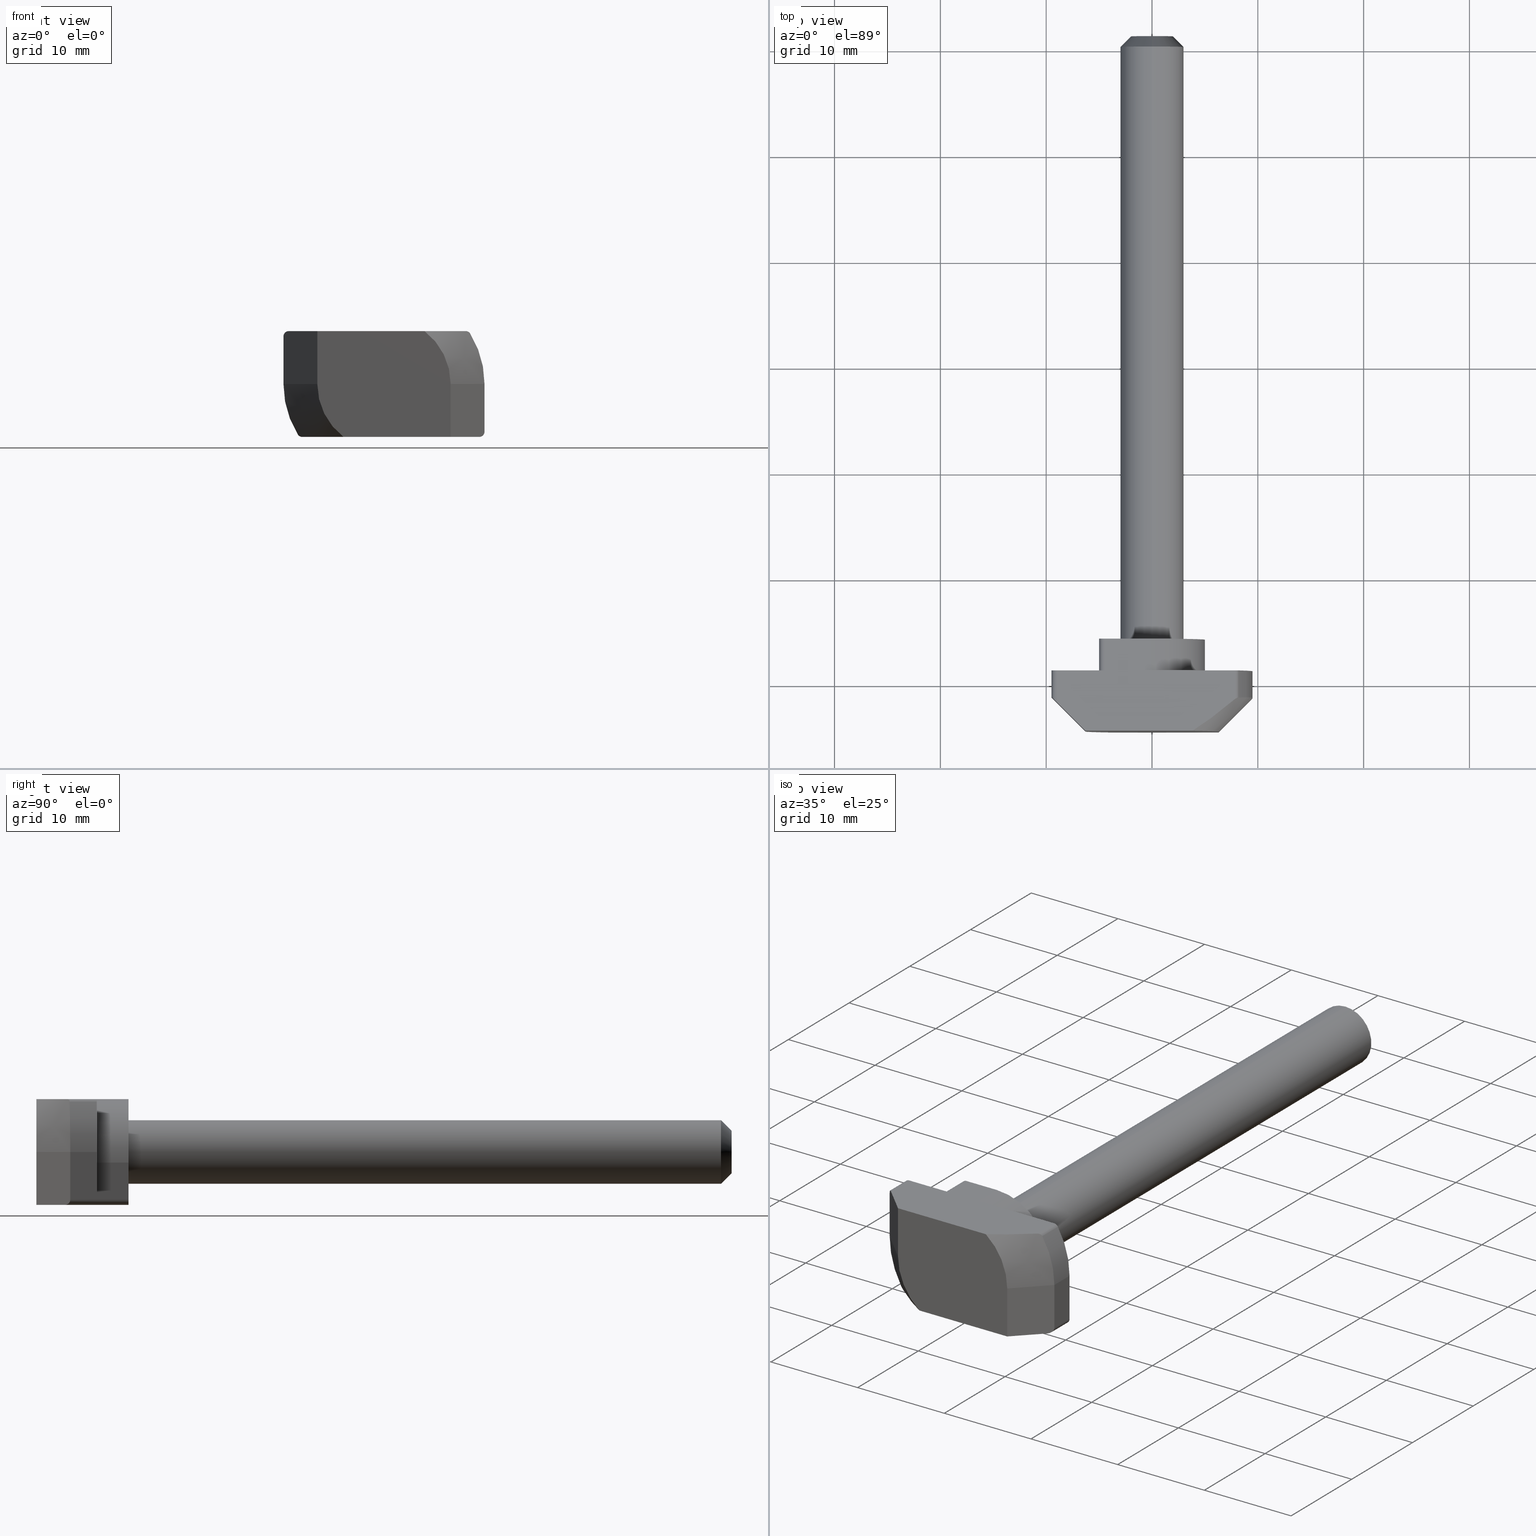
[diagram: canonical four-view strip — front | top / right | iso, engineering-drawing reading convention]
A machine part, canonical four-view strip (front | top / right | iso — engineering-drawing reading convention). The complete STEP part file that produces these views, byte-faithful:
ISO-10303-21;
HEADER;
FILE_DESCRIPTION (( 'STEP AP214' ),
    '1' );
FILE_NAME ('B762 �-���� �6�60, ��� 10.STEP',
    '2025-07-15T11:22:55',
    ( '' ),
    ( '' ),
    'SwSTEP 2.0',
    'SolidWorks 2025',
    '' );
FILE_SCHEMA (( 'AUTOMOTIVE_DESIGN' ));
ENDSEC;

DATA;
#1 = VERTEX_POINT ( 'NONE', #114 ) ;
#2 = EDGE_CURVE ( 'NONE', #32, #110, #611, .T. ) ;
#3 = FACE_OUTER_BOUND ( 'NONE', #52, .T. ) ;
#4 = DIRECTION ( 'NONE',  ( -1.000000000000000000, -0.000000000000000000, -0.000000000000000000 ) ) ;
#5 = VECTOR ( 'NONE', #608, 1000.000000000000000 ) ;
#6 = ORIENTED_EDGE ( 'NONE', *, *, #525, .F. ) ;
#7 = VECTOR ( 'NONE', #454, 1000.000000000000000 ) ;
#8 = FACE_OUTER_BOUND ( 'NONE', #326, .T. ) ;
#9 = PLANE ( 'NONE',  #472 ) ;
#10 = ORIENTED_EDGE ( 'NONE', *, *, #265, .F. ) ;
#11 = LINE ( 'NONE', #459, #80 ) ;
#12 = DIRECTION ( 'NONE',  ( 0.000000000000000000, 0.000000000000000000, 1.000000000000000000 ) ) ;
#13 = ADVANCED_FACE ( 'NONE', ( #835 ), #764, .T. ) ;
#14 = ORIENTED_EDGE ( 'NONE', *, *, #820, .T. ) ;
#15 = CARTESIAN_POINT ( 'NONE',  ( -7.725812383582639775, 1.349999999999999645, -4.500000000000000888 ) ) ;
#16 = CARTESIAN_POINT ( 'NONE',  ( -8.100943385825214449, -1.211561332278508152, -4.844395446298435992 ) ) ;
#17 = AXIS2_PLACEMENT_3D ( 'NONE', #523, #26, #86 ) ;
#18 = AXIS2_PLACEMENT_3D ( 'NONE', #372, #803, #450 ) ;
#19 = AXIS2_PLACEMENT_3D ( 'NONE', #510, #867, #724 ) ;
#20 = PLANE ( 'NONE',  #656 ) ;
#21 = ORIENTED_EDGE ( 'NONE', *, *, #343, .T. ) ;
#22 = EDGE_CURVE ( 'NONE', #126, #1, #258, .T. ) ;
#23 = DIRECTION ( 'NONE',  ( -0.000000000000000000, 1.000000000000000000, -0.000000000000000000 ) ) ;
#24 =( NAMED_UNIT ( * ) SI_UNIT ( $, .STERADIAN. ) SOLID_ANGLE_UNIT ( ) );
#25 = DIRECTION ( 'NONE',  ( 0.000000000000000000, 0.000000000000000000, -1.000000000000000000 ) ) ;
#26 = DIRECTION ( 'NONE',  ( -0.000000000000000000, 1.000000000000000000, -0.000000000000000000 ) ) ;
#27 = VERTEX_POINT ( 'NONE', #187 ) ;
#28 = CARTESIAN_POINT ( 'NONE',  ( 0.9999999999999991118, 4.349999999999999645, 1.000000000000000000 ) ) ;
#29 = DIRECTION ( 'NONE',  ( -0.7071067811865474617, -0.7071067811865474617, -0.000000000000000000 ) ) ;
#30 = FACE_OUTER_BOUND ( 'NONE', #680, .T. ) ;
#31 = ORIENTED_EDGE ( 'NONE', *, *, #814, .F. ) ;
#32 = VERTEX_POINT ( 'NONE', #338 ) ;
#33 =( BOUNDED_CURVE ( )  B_SPLINE_CURVE ( 3, ( #929, #924, #579, #142 ),
 .UNSPECIFIED., .F., .T. ) 
 B_SPLINE_CURVE_WITH_KNOTS ( ( 4, 4 ),
 ( 1.570796326794896558, 3.141592653589793116 ),
 .UNSPECIFIED. ) 
 CURVE ( )  GEOMETRIC_REPRESENTATION_ITEM ( )  RATIONAL_B_SPLINE_CURVE ( ( 1.000000000000000000, 0.8047378541243649375, 0.8047378541243649375, 1.000000000000000000 ) ) 
 REPRESENTATION_ITEM ( '' )  );
#34 = DIRECTION ( 'NONE',  ( -0.000000000000000000, -1.000000000000000000, -0.000000000000000000 ) ) ;
#35 = VECTOR ( 'NONE', #108, 1000.000000000000000 ) ;
#36 = CARTESIAN_POINT ( 'NONE',  ( -8.151587862237938964, -1.209326124765692345, -4.762135922330098303 ) ) ;
#37 = ORIENTED_EDGE ( 'NONE', *, *, #2, .F. ) ;
#38 = EDGE_CURVE ( 'NONE', #872, #479, #396, .T. ) ;
#39 = ORIENTED_EDGE ( 'NONE', *, *, #481, .F. ) ;
#40 = ORIENTED_EDGE ( 'NONE', *, *, #837, .T. ) ;
#41 = PRODUCT ( 'B762 \X2\0422\X0\-\X2\0431043e043b0442\X0\ \X2\041c\X0\6\X2\0445\X0\60, \X2\043f04300437\X0\ 10', 'B762 \X2\0422\X0\-\X2\0431043e043b0442\X0\ \X2\041c\X0\6\X2\0445\X0\60, \X2\043f04300437\X0\ 10', '', ( #721 ) ) ;
#42 = PRODUCT_DEFINITION ( 'UNKNOWN', '', #662, #551 ) ;
#43 = ORIENTED_EDGE ( 'NONE', *, *, #814, .T. ) ;
#44 = CARTESIAN_POINT ( 'NONE',  ( 0.9999999999999991118, 4.349999999999999645, -5.000000000000000000 ) ) ;
#45 = ORIENTED_EDGE ( 'NONE', *, *, #343, .F. ) ;
#46 = VERTEX_POINT ( 'NONE', #651 ) ;
#47 = CARTESIAN_POINT ( 'NONE',  ( 9.000000000000000000, 1.349999999999999645, -5.000000000000000000 ) ) ;
#48 = CIRCLE ( 'NONE', #557, 6.300000000000002487 ) ;
#49 = VERTEX_POINT ( 'NONE', #863 ) ;
#50 = VECTOR ( 'NONE', #62, 1000.000000000000000 ) ;
#51 = AXIS2_PLACEMENT_3D ( 'NONE', #406, #846, #839 ) ;
#52 = EDGE_LOOP ( 'NONE', ( #890, #485, #679, #556 ) ) ;
#53 = DIRECTION ( 'NONE',  ( -0.000000000000000000, 1.000000000000000000, -0.000000000000000000 ) ) ;
#54 = DIRECTION ( 'NONE',  ( 0.000000000000000000, -0.7071067811865456854, -0.7071067811865493491 ) ) ;
#55 = VERTEX_POINT ( 'NONE', #708 ) ;
#56 = DIRECTION ( 'NONE',  ( 0.000000000000000000, 0.000000000000000000, 1.000000000000000000 ) ) ;
#57 = ADVANCED_FACE ( 'NONE', ( #443 ), #713, .T. ) ;
#58 = ORIENTED_EDGE ( 'NONE', *, *, #265, .T. ) ;
#59 = DIRECTION ( 'NONE',  ( -0.000000000000000000, -0.000000000000000000, -1.000000000000000000 ) ) ;
#60 = ORIENTED_EDGE ( 'NONE', *, *, #798, .F. ) ;
#61 = CARTESIAN_POINT ( 'NONE',  ( -9.500000000000001776, -1.150000000000000355, 4.500000000000000888 ) ) ;
#62 = DIRECTION ( 'NONE',  ( -0.000000000000000000, 1.000000000000000000, -0.000000000000000000 ) ) ;
#63 = AXIS2_PLACEMENT_3D ( 'NONE', #428, #638, #707 ) ;
#64 = ADVANCED_FACE ( 'NONE', ( #787 ), #9, .F. ) ;
#65 = CIRCLE ( 'NONE', #484, 0.4999999999999995559 ) ;
#66 = CIRCLE ( 'NONE', #185, 0.5000000000000004441 ) ;
#67 = ORIENTED_EDGE ( 'NONE', *, *, #281, .F. ) ;
#68 = DIRECTION ( 'NONE',  ( 0.000000000000000000, 0.000000000000000000, -1.000000000000000000 ) ) ;
#69 = CARTESIAN_POINT ( 'NONE',  ( 9.500000000000000000, 1.349999999999999645, -4.500000000000001776 ) ) ;
#70 = DIRECTION ( 'NONE',  ( 0.000000000000000000, 0.000000000000000000, -1.000000000000000000 ) ) ;
#71 = DIRECTION ( 'NONE',  ( -0.000000000000000000, -0.000000000000000000, -1.000000000000000000 ) ) ;
#72 = ORIENTED_EDGE ( 'NONE', *, *, #300, .F. ) ;
#73 = DIRECTION ( 'NONE',  ( -0.000000000000000000, 1.000000000000000000, -0.000000000000000000 ) ) ;
#74 = CARTESIAN_POINT ( 'NONE',  ( 0.000000000000000000, 61.35000000000000142, 0.000000000000000000 ) ) ;
#75 = ORIENTED_EDGE ( 'NONE', *, *, #357, .F. ) ;
#76 = DIRECTION ( 'NONE',  ( -0.000000000000000000, -0.000000000000000000, -1.000000000000000000 ) ) ;
#77 = FACE_OUTER_BOUND ( 'NONE', #301, .T. ) ;
#78 = AXIS2_PLACEMENT_3D ( 'NONE', #163, #449, #603 ) ;
#79 = VERTEX_POINT ( 'NONE', #567 ) ;
#80 = VECTOR ( 'NONE', #302, 1000.000000000000000 ) ;
#81 = FACE_OUTER_BOUND ( 'NONE', #200, .T. ) ;
#82 = EDGE_CURVE ( 'NONE', #848, #825, #66, .T. ) ;
#83 = DIRECTION ( 'NONE',  ( 0.000000000000000000, -0.000000000000000000, -1.000000000000000000 ) ) ;
#84 = VERTEX_POINT ( 'NONE', #794 ) ;
#85 = FACE_OUTER_BOUND ( 'NONE', #341, .T. ) ;
#86 = DIRECTION ( 'NONE',  ( 0.000000000000000000, 0.000000000000000000, 1.000000000000000000 ) ) ;
#87 = PLANE ( 'NONE',  #843 ) ;
#88 = FACE_OUTER_BOUND ( 'NONE', #609, .T. ) ;
#89 = ADVANCED_FACE ( 'NONE', ( #3 ), #143, .T. ) ;
#90 = VECTOR ( 'NONE', #278, 999.9999999999998863 ) ;
#91 = EDGE_LOOP ( 'NONE', ( #128, #468, #541, #905 ) ) ;
#92 = AXIS2_PLACEMENT_3D ( 'NONE', #276, #118, #412 ) ;
#93 = CARTESIAN_POINT ( 'NONE',  ( 9.000000000000000000, 1.349999999999999645, -4.500000000000001776 ) ) ;
#94 = FACE_OUTER_BOUND ( 'NONE', #833, .T. ) ;
#95 = ADVANCED_FACE ( 'NONE', ( #930 ), #904, .T. ) ;
#96 = FACE_OUTER_BOUND ( 'NONE', #257, .T. ) ;
#97 = CARTESIAN_POINT ( 'NONE',  ( -7.725812383582648657, -1.447382058005526106, -5.000000000000000000 ) ) ;
#98 = DIRECTION ( 'NONE',  ( 0.000000000000000000, 0.000000000000000000, -1.000000000000000000 ) ) ;
#99 = ORIENTED_EDGE ( 'NONE', *, *, #689, .T. ) ;
#100 = CARTESIAN_POINT ( 'NONE',  ( 8.590887771462600853, -1.189937505768506432, 4.048601022340985622 ) ) ;
#101 = SURFACE_STYLE_USAGE ( .BOTH. , #667 ) ;
#102 = EDGE_CURVE ( 'NONE', #671, #106, #378, .T. ) ;
#103 = CARTESIAN_POINT ( 'NONE',  ( -5.000000000000000888, 4.349999999999999645, 5.000000000000000000 ) ) ;
#104 = CYLINDRICAL_SURFACE ( 'NONE', #199, 0.4999999999999995559 ) ;
#105 = ORIENTED_EDGE ( 'NONE', *, *, #891, .T. ) ;
#106 = VERTEX_POINT ( 'NONE', #158 ) ;
#107 = AXIS2_PLACEMENT_3D ( 'NONE', #148, #136, #429 ) ;
#108 = DIRECTION ( 'NONE',  ( -0.000000000000000000, -0.000000000000000000, -1.000000000000000000 ) ) ;
#109 = VECTOR ( 'NONE', #4, 1000.000000000000000 ) ;
#110 = VERTEX_POINT ( 'NONE', #635 ) ;
#111 = ORIENTED_EDGE ( 'NONE', *, *, #331, .F. ) ;
#112 = ORIENTED_EDGE ( 'NONE', *, *, #495, .F. ) ;
#113 = VERTEX_POINT ( 'NONE', #354 ) ;
#114 = CARTESIAN_POINT ( 'NONE',  ( 9.499999999999998224, -1.150000000000005240, 0.000000000000000000 ) ) ;
#115 = EDGE_CURVE ( 'NONE', #403, #670, #791, .T. ) ;
#116 = ORIENTED_EDGE ( 'NONE', *, *, #383, .T. ) ;
#117 = UNCERTAINTY_MEASURE_WITH_UNIT (LENGTH_MEASURE( 1.000000000000000082E-05 ), #727, 'distance_accuracy_value', 'NONE');
#118 = DIRECTION ( 'NONE',  ( 0.000000000000000000, -1.000000000000000000, 0.000000000000000000 ) ) ;
#119 = VECTOR ( 'NONE', #227, 1000.000000000000000 ) ;
#120 = DIRECTION ( 'NONE',  ( 0.000000000000000000, -1.000000000000000000, 0.000000000000000000 ) ) ;
#121 = AXIS2_PLACEMENT_3D ( 'NONE', #380, #533, #311 ) ;
#122 = CARTESIAN_POINT ( 'NONE',  ( -5.000000000000000888, 1.349999999999999645, 1.000000000000000000 ) ) ;
#123 = EDGE_LOOP ( 'NONE', ( #371, #145, #703, #318 ) ) ;
#124 = PRODUCT_RELATED_PRODUCT_CATEGORY ( 'part', '', ( #41 ) ) ;
#125 = CARTESIAN_POINT ( 'NONE',  ( -8.371376909115639364, -1.199625676392762630, -4.405142551083173430 ) ) ;
#126 = VERTEX_POINT ( 'NONE', #213 ) ;
#127 = CARTESIAN_POINT ( 'NONE',  ( 3.832753579347366379, -4.349999999999999645, 5.000000000000000000 ) ) ;
#128 = ORIENTED_EDGE ( 'NONE', *, *, #305, .F. ) ;
#129 = PLANE ( 'NONE',  #920 ) ;
#130 = ADVANCED_FACE ( 'NONE', ( #77 ), #871, .T. ) ;
#131 = DIRECTION ( 'NONE',  ( -0.000000000000000000, -0.000000000000000000, -1.000000000000000000 ) ) ;
#132 = CARTESIAN_POINT ( 'NONE',  ( -4.500000000000000888, 4.349999999999999645, 5.000000000000000000 ) ) ;
#133 = ORIENTED_EDGE ( 'NONE', *, *, #826, .T. ) ;
#134 = CARTESIAN_POINT ( 'NONE',  ( -4.500000000000000888, 4.349999999999999645, 4.500000000000000888 ) ) ;
#135 = LINE ( 'NONE', #353, #90 ) ;
#136 = DIRECTION ( 'NONE',  ( 0.000000000000000000, 1.000000000000000000, 0.000000000000000000 ) ) ;
#137 = CARTESIAN_POINT ( 'NONE',  ( 4.999999999999999112, 4.349999999999999645, 5.000000000000000000 ) ) ;
#138 = AXIS2_PLACEMENT_3D ( 'NONE', #894, #165, #801 ) ;
#139 = AXIS2_PLACEMENT_3D ( 'NONE', #649, #793, #862 ) ;
#140 = VECTOR ( 'NONE', #912, 1000.000000000000000 ) ;
#141 = VERTEX_POINT ( 'NONE', #700 ) ;
#142 = CARTESIAN_POINT ( 'NONE',  ( 9.500000000000000000, -1.150000000000000355, -4.500000000000001776 ) ) ;
#143 = CYLINDRICAL_SURFACE ( 'NONE', #661, 3.000000000000000444 ) ;
#144 = CARTESIAN_POINT ( 'NONE',  ( 4.999999999999999112, 1.349999999999999645, 5.000000000000000000 ) ) ;
#145 = ORIENTED_EDGE ( 'NONE', *, *, #192, .F. ) ;
#146 = EDGE_CURVE ( 'NONE', #32, #84, #432, .T. ) ;
#147 = CARTESIAN_POINT ( 'NONE',  ( -6.300000000000001599, -4.350000000000000533, 0.000000000000000000 ) ) ;
#148 = CARTESIAN_POINT ( 'NONE',  ( 0.000000000000000000, 61.35000000000000142, 0.000000000000000000 ) ) ;
#149 = ORIENTED_EDGE ( 'NONE', *, *, #272, .F. ) ;
#150 = LINE ( 'NONE', #856, #393 ) ;
#151 = CARTESIAN_POINT ( 'NONE',  ( 7.725812383582646881, -1.447382058005527217, 5.000000000000000000 ) ) ;
#152 = AXIS2_PLACEMENT_3D ( 'NONE', #699, #634, #514 ) ;
#153 = ORIENTED_EDGE ( 'NONE', *, *, #804, .F. ) ;
#154 = VECTOR ( 'NONE', #834, 1000.000000000000000 ) ;
#155 = EDGE_CURVE ( 'NONE', #899, #179, #686, .T. ) ;
#156 = DIRECTION ( 'NONE',  ( 0.000000000000000000, 0.000000000000000000, 1.000000000000000000 ) ) ;
#157 = CARTESIAN_POINT ( 'NONE',  ( 4.999999999999999112, 1.349999999999999645, -4.500000000000001776 ) ) ;
#158 = CARTESIAN_POINT ( 'NONE',  ( 6.300000000000000711, -4.349999999999999645, 0.000000000000000000 ) ) ;
#159 = DIRECTION ( 'NONE',  ( 0.000000000000000000, 0.000000000000000000, 1.000000000000000000 ) ) ;
#160 = ORIENTED_EDGE ( 'NONE', *, *, #630, .T. ) ;
#161 = DIRECTION ( 'NONE',  ( -0.000000000000000000, 1.000000000000000000, -0.000000000000000000 ) ) ;
#162 = EDGE_CURVE ( 'NONE', #1, #691, #294, .T. ) ;
#163 = CARTESIAN_POINT ( 'NONE',  ( 0.4166666666666537511, 1.349999999999999645, 0.000000000000000000 ) ) ;
#164 = DIRECTION ( 'NONE',  ( 0.000000000000000000, 0.000000000000000000, -1.000000000000000000 ) ) ;
#165 = DIRECTION ( 'NONE',  ( 0.000000000000000000, -1.000000000000000000, 0.000000000000000000 ) ) ;
#166 = EDGE_CURVE ( 'NONE', #627, #49, #228, .T. ) ;
#167 = VECTOR ( 'NONE', #807, 1000.000000000000000 ) ;
#168 = DIRECTION ( 'NONE',  ( -0.000000000000000000, -1.000000000000000000, -0.000000000000000000 ) ) ;
#169 = CARTESIAN_POINT ( 'NONE',  ( 9.000000000000000000, 1.349999999999999645, -4.500000000000001776 ) ) ;
#170 = ORIENTED_EDGE ( 'NONE', *, *, #745, .T. ) ;
#171 = LINE ( 'NONE', #735, #332 ) ;
#172 = CARTESIAN_POINT ( 'NONE',  ( 3.673940397442059868E-16, 61.35000000000000142, 3.000000000000000444 ) ) ;
#173 = DIRECTION ( 'NONE',  ( 0.000000000000000000, -1.000000000000000000, 0.000000000000000000 ) ) ;
#174 = ORIENTED_EDGE ( 'NONE', *, *, #102, .T. ) ;
#175 = ORIENTED_EDGE ( 'NONE', *, *, #400, .T. ) ;
#176 = EDGE_CURVE ( 'NONE', #751, #693, #647, .T. ) ;
#177 = MANIFOLD_SOLID_BREP ( '\X2\042404300441043a0430\X0\1', #861 ) ;
#178 = CARTESIAN_POINT ( 'NONE',  ( -1.000000000000000888, 4.349999999999999645, -1.000000000000000000 ) ) ;
#179 = VERTEX_POINT ( 'NONE', #345 ) ;
#180 = ORIENTED_EDGE ( 'NONE', *, *, #421, .T. ) ;
#181 = AXIS2_PLACEMENT_3D ( 'NONE', #28, #161, #374 ) ;
#182 = ADVANCED_FACE ( 'NONE', ( #922, #771 ), #822, .F. ) ;
#183 = CARTESIAN_POINT ( 'NONE',  ( 4.999999999999999112, 1.349999999999999645, 5.000000000000000000 ) ) ;
#184 = CONICAL_SURFACE ( 'NONE', #430, 2.000000000000029310, 0.7853981633974509435 ) ;
#185 = AXIS2_PLACEMENT_3D ( 'NONE', #854, #224, #289 ) ;
#186 = EDGE_CURVE ( 'NONE', #407, #865, #48, .T. ) ;
#187 = CARTESIAN_POINT ( 'NONE',  ( 6.299999999999998934, -4.349999999999999645, -5.000000000000000000 ) ) ;
#188 = ORIENTED_EDGE ( 'NONE', *, *, #370, .T. ) ;
#189 = CARTESIAN_POINT ( 'NONE',  ( 9.500000000000000000, -1.150000000000000355, 5.000000000000000000 ) ) ;
#190 = LINE ( 'NONE', #69, #119 ) ;
#191 = ORIENTED_EDGE ( 'NONE', *, *, #176, .T. ) ;
#192 = EDGE_CURVE ( 'NONE', #46, #113, #535, .T. ) ;
#193 = ORIENTED_EDGE ( 'NONE', *, *, #2, .T. ) ;
#194 = CARTESIAN_POINT ( 'NONE',  ( 4.499999999999999112, 1.349999999999999645, -4.500000000000001776 ) ) ;
#195 = EDGE_LOOP ( 'NONE', ( #916, #111, #631, #10 ) ) ;
#196 = LINE ( 'NONE', #480, #140 ) ;
#197 = ADVANCED_FACE ( 'NONE', ( #889 ), #104, .T. ) ;
#198 = ORIENTED_EDGE ( 'NONE', *, *, #433, .F. ) ;
#199 = AXIS2_PLACEMENT_3D ( 'NONE', #169, #173, #375 ) ;
#200 = EDGE_LOOP ( 'NONE', ( #43, #584, #254, #849 ) ) ;
#201 = AXIS2_PLACEMENT_3D ( 'NONE', #15, #244, #164 ) ;
#202 = DIRECTION ( 'NONE',  ( 0.000000000000000000, 0.000000000000000000, -1.000000000000000000 ) ) ;
#203 = ORIENTED_EDGE ( 'NONE', *, *, #331, .T. ) ;
#204 = ADVANCED_FACE ( 'NONE', ( #94 ), #20, .F. ) ;
#205 = FACE_OUTER_BOUND ( 'NONE', #578, .T. ) ;
#206 = FACE_OUTER_BOUND ( 'NONE', #743, .T. ) ;
#207 = ORIENTED_EDGE ( 'NONE', *, *, #481, .T. ) ;
#208 = DIRECTION ( 'NONE',  ( -0.000000000000000000, -1.000000000000000000, -0.000000000000000000 ) ) ;
#209 = EDGE_LOOP ( 'NONE', ( #39, #824, #282, #72 ) ) ;
#210 = EDGE_CURVE ( 'NONE', #141, #670, #515, .T. ) ;
#211 = CARTESIAN_POINT ( 'NONE',  ( 0.000000000000000000, 61.35000000000000142, -2.000000000000029310 ) ) ;
#212 = CARTESIAN_POINT ( 'NONE',  ( -9.500000000000001776, -1.150000000000000799, 4.792893218813452982 ) ) ;
#213 = CARTESIAN_POINT ( 'NONE',  ( 9.499999999999998224, 1.349999999999999645, 0.000000000000000000 ) ) ;
#214 = CARTESIAN_POINT ( 'NONE',  ( -1.000000000000000888, 1.349999999999999645, 5.000000000000000000 ) ) ;
#215 = EDGE_LOOP ( 'NONE', ( #927, #688, #615, #710 ) ) ;
#216 = CARTESIAN_POINT ( 'NONE',  ( 0.000000000000000000, 0.000000000000000000, 0.000000000000000000 ) ) ;
#217 = LINE ( 'NONE', #723, #885 ) ;
#218 = PLANE ( 'NONE',  #737 ) ;
#219 = AXIS2_PLACEMENT_3D ( 'NONE', #93, #810, #593 ) ;
#220 = VECTOR ( 'NONE', #521, 1000.000000000000000 ) ;
#221 = ORIENTED_EDGE ( 'NONE', *, *, #525, .T. ) ;
#222 = APPLICATION_PROTOCOL_DEFINITION ( 'draft international standard', 'automotive_design', 1998, #760 ) ;
#223 = CARTESIAN_POINT ( 'NONE',  ( 4.999999999999999112, 4.349999999999999645, 5.000000000000000000 ) ) ;
#224 = DIRECTION ( 'NONE',  ( -0.000000000000000000, 1.000000000000000000, -0.000000000000000000 ) ) ;
#225 = ADVANCED_FACE ( 'NONE', ( #30 ), #277, .T. ) ;
#226 = EDGE_LOOP ( 'NONE', ( #235, #203, #352, #461 ) ) ;
#227 = DIRECTION ( 'NONE',  ( 0.000000000000000000, 1.000000000000000000, 0.000000000000000000 ) ) ;
#228 = LINE ( 'NONE', #718, #499 ) ;
#229 = EDGE_CURVE ( 'NONE', #126, #825, #259, .T. ) ;
#230 = ORIENTED_EDGE ( 'NONE', *, *, #210, .F. ) ;
#231 = EDGE_LOOP ( 'NONE', ( #487, #795, #643, #540, #452, #623, #263, #674 ) ) ;
#232 = LINE ( 'NONE', #446, #220 ) ;
#233 = CARTESIAN_POINT ( 'NONE',  ( -9.000000000000001776, 0.000000000000000000, 4.500000000000000888 ) ) ;
#234 = VECTOR ( 'NONE', #320, 1000.000000000000000 ) ;
#235 = ORIENTED_EDGE ( 'NONE', *, *, #550, .F. ) ;
#236 = AXIS2_PLACEMENT_3D ( 'NONE', #817, #546, #741 ) ;
#237 = DIRECTION ( 'NONE',  ( 0.000000000000000000, 0.000000000000000000, -1.000000000000000000 ) ) ;
#238 = ADVANCED_FACE ( 'NONE', ( #589 ), #295, .T. ) ;
#239 = CARTESIAN_POINT ( 'NONE',  ( -7.725812383582648657, -1.447382058005526106, -5.000000000000000000 ) ) ;
#240 = CARTESIAN_POINT ( 'NONE',  ( 0.000000000000000000, -4.349999999999999645, 0.000000000000000000 ) ) ;
#241 = CARTESIAN_POINT ( 'NONE',  ( -9.500000000000001776, 1.349999999999999645, 5.000000000000000000 ) ) ;
#242 = CARTESIAN_POINT ( 'NONE',  ( -7.876652734932798161, -1.329097432358699482, -4.984263951443673513 ) ) ;
#243 = ORIENTED_EDGE ( 'NONE', *, *, #512, .T. ) ;
#244 = DIRECTION ( 'NONE',  ( -0.000000000000000000, 1.000000000000000000, -0.000000000000000000 ) ) ;
#245 = LINE ( 'NONE', #386, #901 ) ;
#246 = ADVANCED_FACE ( 'NONE', ( #88 ), #805, .F. ) ;
#247 = AXIS2_PLACEMENT_3D ( 'NONE', #233, #800, #857 ) ;
#248 = AXIS2_PLACEMENT_3D ( 'NONE', #134, #53, #416 ) ;
#249 = CARTESIAN_POINT ( 'NONE',  ( 9.499999999999998224, -1.150000000000005240, 0.000000000000000000 ) ) ;
#250 = FILL_AREA_STYLE_COLOUR ( '', #330 ) ;
#251 = CARTESIAN_POINT ( 'NONE',  ( -9.500000000000001776, -1.150000000000000355, 5.000000000000000000 ) ) ;
#252 = CARTESIAN_POINT ( 'NONE',  ( 0.000000000000000000, 4.349999999999999645, 0.000000000000000000 ) ) ;
#253 = VERTEX_POINT ( 'NONE', #317 ) ;
#254 = ORIENTED_EDGE ( 'NONE', *, *, #210, .T. ) ;
#255 = DIRECTION ( 'NONE',  ( 0.000000000000000000, -1.000000000000000000, 0.000000000000000000 ) ) ;
#256 = ORIENTED_EDGE ( 'NONE', *, *, #166, .F. ) ;
#257 = EDGE_LOOP ( 'NONE', ( #914, #414, #304, #538 ) ) ;
#258 = LINE ( 'NONE', #840, #334 ) ;
#259 = CIRCLE ( 'NONE', #78, 9.083333333333344584 ) ;
#260 = AXIS2_PLACEMENT_3D ( 'NONE', #528, #736, #534 ) ;
#261 = EDGE_CURVE ( 'NONE', #825, #872, #310, .T. ) ;
#262 = CIRCLE ( 'NONE', #260, 3.000000000000000444 ) ;
#263 = ORIENTED_EDGE ( 'NONE', *, *, #176, .F. ) ;
#264 = CARTESIAN_POINT ( 'NONE',  ( -9.500000000000001776, -1.150000000000002354, -0.8418404492912252568 ) ) ;
#265 = EDGE_CURVE ( 'NONE', #693, #253, #742, .T. ) ;
#266 = ORIENTED_EDGE ( 'NONE', *, *, #316, .T. ) ;
#267 = CARTESIAN_POINT ( 'NONE',  ( 5.184422045641049692, -3.459625232567117070, 5.000000000000000000 ) ) ;
#268 = ORIENTED_EDGE ( 'NONE', *, *, #702, .T. ) ;
#269 = CARTESIAN_POINT ( 'NONE',  ( -8.151587862237938964, -1.209326124765692345, -4.762135922330098303 ) ) ;
#270 = VERTEX_POINT ( 'NONE', #313 ) ;
#271 = FACE_OUTER_BOUND ( 'NONE', #123, .T. ) ;
#272 = EDGE_CURVE ( 'NONE', #911, #561, #376, .T. ) ;
#273 = ORIENTED_EDGE ( 'NONE', *, *, #745, .F. ) ;
#274 = UNCERTAINTY_MEASURE_WITH_UNIT (LENGTH_MEASURE( 1.000000000000000082E-05 ), #797, 'distance_accuracy_value', 'NONE');
#275 = B_SPLINE_CURVE_WITH_KNOTS ( 'NONE', 3,
 ( #692, #486, #290, #267, #355, #549 ),
 .UNSPECIFIED., .F., .F.,
 ( 4, 2, 4 ),
 ( 0.01236756277886352437, 0.01479903702219442785, 0.01723051126552533133 ),
 .UNSPECIFIED. ) ;
#276 = CARTESIAN_POINT ( 'NONE',  ( -0.4166666666666728469, 1.349999999999999645, 4.336808689942017736E-16 ) ) ;
#277 = CONICAL_SURFACE ( 'NONE', #17, 4.300000000000001599, 0.7853981633974485010 ) ;
#278 = DIRECTION ( 'NONE',  ( 0.7071067811865477948, 0.7071067811865473507, -0.000000000000000000 ) ) ;
#279 = ORIENTED_EDGE ( 'NONE', *, *, #261, .T. ) ;
#280 = LINE ( 'NONE', #144, #349 ) ;
#281 = EDGE_CURVE ( 'NONE', #126, #792, #818, .T. ) ;
#282 = ORIENTED_EDGE ( 'NONE', *, *, #293, .F. ) ;
#283 = PLANE ( 'NONE',  #766 ) ;
#284 = CYLINDRICAL_SURFACE ( 'NONE', #755, 6.000000000000000000 ) ;
#285 = CARTESIAN_POINT ( 'NONE',  ( 7.799374578487676679, -1.385624879782098029, 5.000000000000998313 ) ) ;
#286 = VERTEX_POINT ( 'NONE', #599 ) ;
#287 = CYLINDRICAL_SURFACE ( 'NONE', #473, 0.5000000000000004441 ) ;
#288 = LINE ( 'NONE', #560, #765 ) ;
#289 = DIRECTION ( 'NONE',  ( 0.000000000000000000, 0.000000000000000000, -1.000000000000000000 ) ) ;
#290 = CARTESIAN_POINT ( 'NONE',  ( 6.476013522807039458, -2.479197805821869327, 5.000000000000000888 ) ) ;
#291 = ORIENTED_EDGE ( 'NONE', *, *, #733, .F. ) ;
#292 = CARTESIAN_POINT ( 'NONE',  ( 0.000000000000000000, 60.35000000000003695, -3.000000000000000444 ) ) ;
#293 = EDGE_CURVE ( 'NONE', #55, #508, #806, .T. ) ;
#294 = LINE ( 'NONE', #577, #720 ) ;
#295 = CONICAL_SURFACE ( 'NONE', #809, 14.00000000000000178, 0.7853981633974482790 ) ;
#296 = VECTOR ( 'NONE', #931, 1000.000000000000000 ) ;
#297 = ORIENTED_EDGE ( 'NONE', *, *, #383, .F. ) ;
#298 = PLANE ( 'NONE',  #63 ) ;
#299 = DIRECTION ( 'NONE',  ( 0.000000000000000000, -1.000000000000000000, 0.000000000000000000 ) ) ;
#300 = EDGE_CURVE ( 'NONE', #445, #55, #245, .T. ) ;
#301 = EDGE_LOOP ( 'NONE', ( #367, #759, #297, #6 ) ) ;
#302 = DIRECTION ( 'NONE',  ( -1.000000000000000000, -0.000000000000000000, -0.000000000000000000 ) ) ;
#303 = CARTESIAN_POINT ( 'NONE',  ( 7.876652734932794608, -1.329097432358700814, 4.984263951443676177 ) ) ;
#304 = ORIENTED_EDGE ( 'NONE', *, *, #592, .T. ) ;
#305 = EDGE_CURVE ( 'NONE', #394, #691, #33, .T. ) ;
#306 = CARTESIAN_POINT ( 'NONE',  ( 7.725812383582646881, -1.447382058005527217, 5.000000000000000000 ) ) ;
#307 = DIRECTION ( 'NONE',  ( 1.000000000000000000, 0.000000000000000000, 0.000000000000000000 ) ) ;
#308 = CIRCLE ( 'NONE', #590, 6.000000000000000000 ) ;
#309 = DIRECTION ( 'NONE',  ( 0.000000000000000000, 0.000000000000000000, -1.000000000000000000 ) ) ;
#310 = LINE ( 'NONE', #526, #319 ) ;
#311 = DIRECTION ( 'NONE',  ( 0.000000000000000000, 0.000000000000000000, -1.000000000000000000 ) ) ;
#312 = CARTESIAN_POINT ( 'NONE',  ( -4.300000000000001599, -6.349999999999999645, 0.000000000000000000 ) ) ;
#313 = CARTESIAN_POINT ( 'NONE',  ( 3.673940397442059868E-16, 60.35000000000003695, 3.000000000000000444 ) ) ;
#314 = CARTESIAN_POINT ( 'NONE',  ( 8.151587862237940740, -1.209326124765692123, 4.762135922330097415 ) ) ;
#315 = LINE ( 'NONE', #103, #35 ) ;
#316 = EDGE_CURVE ( 'NONE', #691, #792, #190, .T. ) ;
#317 = CARTESIAN_POINT ( 'NONE',  ( -4.500000000000000888, 1.349999999999999645, 5.000000000000000000 ) ) ;
#318 = ORIENTED_EDGE ( 'NONE', *, *, #400, .F. ) ;
#319 = VECTOR ( 'NONE', #460, 1000.000000000000000 ) ;
#320 = DIRECTION ( 'NONE',  ( -1.000000000000000000, -0.000000000000000000, -0.000000000000000000 ) ) ;
#321 = CARTESIAN_POINT ( 'NONE',  ( 9.500000000000000000, 1.349999999999999645, 5.000000000000000000 ) ) ;
#322 = ORIENTED_EDGE ( 'NONE', *, *, #570, .F. ) ;
#323 = ADVANCED_FACE ( 'NONE', ( #368 ), #284, .T. ) ;
#324 = LINE ( 'NONE', #251, #411 ) ;
#325 = EDGE_CURVE ( 'NONE', #670, #141, #873, .T. ) ;
#326 = EDGE_LOOP ( 'NONE', ( #677, #767, #399, #477, #45, #613, #770, #243, #388, #636 ) ) ;
#327 = CARTESIAN_POINT ( 'NONE',  ( -4.522527495930605212, -3.930359770202402458, -5.000000000000000000 ) ) ;
#328 = ORIENTED_EDGE ( 'NONE', *, *, #896, .F. ) ;
#329 = ORIENTED_EDGE ( 'NONE', *, *, #570, .T. ) ;
#330 = COLOUR_RGB ( '',0.9254901960784314152, 0.9254901960784314152, 0.9254901960784314152 ) ;
#331 = EDGE_CURVE ( 'NONE', #79, #518, #150, .T. ) ;
#332 = VECTOR ( 'NONE', #600, 1000.000000000000000 ) ;
#333 = FACE_OUTER_BOUND ( 'NONE', #215, .T. ) ;
#334 = VECTOR ( 'NONE', #413, 1000.000000000000000 ) ;
#335 = CARTESIAN_POINT ( 'NONE',  ( 2.449293598294741913E-16, 61.35000000000000142, 2.000000000000029310 ) ) ;
#336 = ORIENTED_EDGE ( 'NONE', *, *, #357, .T. ) ;
#337 = CARTESIAN_POINT ( 'NONE',  ( -5.000000000000000888, 1.349999999999999645, 1.000000000000000000 ) ) ;
#338 = CARTESIAN_POINT ( 'NONE',  ( -9.500000000000001776, 1.349999999999999645, 4.500000000000000888 ) ) ;
#339 = ORIENTED_EDGE ( 'NONE', *, *, #488, .T. ) ;
#340 = CARTESIAN_POINT ( 'NONE',  ( -3.832753579347364603, -4.349999999999999645, -5.000000000000000000 ) ) ;
#341 = EDGE_LOOP ( 'NONE', ( #838, #419, #831, #273 ) ) ;
#342 = CARTESIAN_POINT ( 'NONE',  ( 4.999999999999999112, 4.349999999999999645, -1.000000000000000000 ) ) ;
#343 = EDGE_CURVE ( 'NONE', #27, #394, #135, .T. ) ;
#344 = ORIENTED_EDGE ( 'NONE', *, *, #146, .T. ) ;
#345 = CARTESIAN_POINT ( 'NONE',  ( 3.061616997868401384E-16, 61.35000000000000142, 2.000000000000029310 ) ) ;
#346 = CARTESIAN_POINT ( 'NONE',  ( -8.900614436037926680, -1.176322435868958349, -3.271640811301538498 ) ) ;
#347 = DIRECTION ( 'NONE',  ( 0.000000000000000000, -1.000000000000000000, 0.000000000000000000 ) ) ;
#348 = CARTESIAN_POINT ( 'NONE',  ( -9.000000000000001776, 1.349999999999999645, 4.500000000000000888 ) ) ;
#349 = VECTOR ( 'NONE', #59, 1000.000000000000000 ) ;
#350 = LINE ( 'NONE', #587, #109 ) ;
#351 = EDGE_CURVE ( 'NONE', #49, #407, #288, .T. ) ;
#352 = ORIENTED_EDGE ( 'NONE', *, *, #758, .T. ) ;
#353 = CARTESIAN_POINT ( 'NONE',  ( 9.500000000000000000, -1.150000000000000355, -5.000000000000000000 ) ) ;
#354 = CARTESIAN_POINT ( 'NONE',  ( 4.499999999999999112, 1.349999999999999645, -5.000000000000000000 ) ) ;
#355 = CARTESIAN_POINT ( 'NONE',  ( 4.522527495930604324, -3.930359770202403347, 5.000000000000000000 ) ) ;
#356 = ORIENTED_EDGE ( 'NONE', *, *, #852, .F. ) ;
#357 = EDGE_CURVE ( 'NONE', #621, #286, #616, .T. ) ;
#358 =( NAMED_UNIT ( * ) PLANE_ANGLE_UNIT ( ) SI_UNIT ( $, .RADIAN. ) );
#359 = CARTESIAN_POINT ( 'NONE',  ( 9.000000000000000000, -1.650000000000000577, -5.000000000000000000 ) ) ;
#360 = CARTESIAN_POINT ( 'NONE',  ( -9.500000000000001776, 1.349999999999999645, 5.000000000000000000 ) ) ;
#361 = EDGE_LOOP ( 'NONE', ( #542, #160, #31, #815 ) ) ;
#362 = LINE ( 'NONE', #641, #483 ) ;
#363 = DIRECTION ( 'NONE',  ( 0.7071067811865477948, -0.7071067811865473507, -0.000000000000000000 ) ) ;
#364 = FACE_OUTER_BOUND ( 'NONE', #789, .T. ) ;
#365 = AXIS2_PLACEMENT_3D ( 'NONE', #749, #729, #98 ) ;
#366 = CIRCLE ( 'NONE', #676, 0.4999999999999995559 ) ;
#367 = ORIENTED_EDGE ( 'NONE', *, *, #146, .F. ) ;
#368 = FACE_OUTER_BOUND ( 'NONE', #921, .T. ) ;
#369 = DIRECTION ( 'NONE',  ( 0.000000000000000000, 0.000000000000000000, -1.000000000000000000 ) ) ;
#370 = EDGE_CURVE ( 'NONE', #49, #671, #501, .T. ) ;
#371 = ORIENTED_EDGE ( 'NONE', *, *, #864, .F. ) ;
#372 = CARTESIAN_POINT ( 'NONE',  ( -0.4166666666666728469, 6.570153254455274983, 4.336808689942017736E-16 ) ) ;
#373 = ADVANCED_FACE ( 'NONE', ( #206 ), #298, .F. ) ;
#374 = DIRECTION ( 'NONE',  ( 0.000000000000000000, 0.000000000000000000, -1.000000000000000000 ) ) ;
#375 = DIRECTION ( 'NONE',  ( 0.000000000000000000, 0.000000000000000000, -1.000000000000000000 ) ) ;
#376 = CIRCLE ( 'NONE', #365, 6.000000000000000000 ) ;
#377 = VECTOR ( 'NONE', #761, 1000.000000000000000 ) ;
#378 = CIRCLE ( 'NONE', #618, 6.300000000000002487 ) ;
#379 = AXIS2_PLACEMENT_3D ( 'NONE', #216, #156, #585 ) ;
#380 = CARTESIAN_POINT ( 'NONE',  ( -5.000000000000000888, 1.349999999999999645, 5.000000000000000000 ) ) ;
#381 = CARTESIAN_POINT ( 'NONE',  ( -9.500000000000001776, -1.150000000000004352, 0.000000000000000000 ) ) ;
#382 = CARTESIAN_POINT ( 'NONE',  ( 9.500000000000000000, 1.349999999999999645, 5.000000000000000000 ) ) ;
#383 = EDGE_CURVE ( 'NONE', #627, #855, #614, .T. ) ;
#384 = CARTESIAN_POINT ( 'NONE',  ( 0.000000000000000000, 61.35000000000000142, 0.000000000000000000 ) ) ;
#385 = CARTESIAN_POINT ( 'NONE',  ( -5.000000000000000888, 4.349999999999999645, 5.000000000000000000 ) ) ;
#386 = CARTESIAN_POINT ( 'NONE',  ( -8.151587862237938964, 6.570153254455274983, -4.762135922330098303 ) ) ;
#387 = ORIENTED_EDGE ( 'NONE', *, *, #186, .T. ) ;
#388 = ORIENTED_EDGE ( 'NONE', *, *, #597, .F. ) ;
#389 = CARTESIAN_POINT ( 'NONE',  ( 4.499999999999999112, 4.349999999999999645, -4.500000000000001776 ) ) ;
#390 = EDGE_CURVE ( 'NONE', #855, #32, #217, .T. ) ;
#391 = DIRECTION ( 'NONE',  ( 0.000000000000000000, 1.000000000000000000, 0.000000000000000000 ) ) ;
#392 = EDGE_LOOP ( 'NONE', ( #329, #175, #517, #697 ) ) ;
#393 = VECTOR ( 'NONE', #73, 1000.000000000000000 ) ;
#394 = VERTEX_POINT ( 'NONE', #359 ) ;
#395 = VECTOR ( 'NONE', #598, 1000.000000000000000 ) ;
#396 = B_SPLINE_CURVE_WITH_KNOTS ( 'NONE', 3,
 ( #417, #695, #475, #303, #285, #151 ),
 .UNSPECIFIED., .F., .F.,
 ( 4, 2, 4 ),
 ( 8.940560153363745023E-19, 0.0002849164371806488000, 0.0005698328743612967326 ),
 .UNSPECIFIED. ) ;
#397 = DIRECTION ( 'NONE',  ( -0.000000000000000000, 1.000000000000000000, -0.000000000000000000 ) ) ;
#398 = B_SPLINE_CURVE_WITH_KNOTS ( 'NONE', 3,
 ( #97, #756, #402, #668, #327, #467 ),
 .UNSPECIFIED., .F., .F.,
 ( 4, 2, 4 ),
 ( 0.01236756277886351917, 0.01479903702219442438, 0.01723051126552532786 ),
 .UNSPECIFIED. ) ;
#399 = ORIENTED_EDGE ( 'NONE', *, *, #421, .F. ) ;
#400 = EDGE_CURVE ( 'NONE', #425, #482, #362, .T. ) ;
#401 = VERTEX_POINT ( 'NONE', #494 ) ;
#402 = CARTESIAN_POINT ( 'NONE',  ( -6.476013522807039458, -2.479197805821867551, -5.000000000000000888 ) ) ;
#403 = VERTEX_POINT ( 'NONE', #292 ) ;
#404 = EDGE_CURVE ( 'NONE', #685, #482, #576, .T. ) ;
#405 = ORIENTED_EDGE ( 'NONE', *, *, #733, .T. ) ;
#406 = CARTESIAN_POINT ( 'NONE',  ( 0.9999999999999991118, 1.349999999999999645, 1.000000000000000000 ) ) ;
#407 = VERTEX_POINT ( 'NONE', #147 ) ;
#408 = B_SPLINE_CURVE_WITH_KNOTS ( 'NONE', 3,
 ( #620, #264, #923, #778, #346, #832, #125, #269 ),
 .UNSPECIFIED., .F., .F.,
 ( 4, 2, 2, 4 ),
 ( 1.975774342156949637E-07, 0.002495132035566803574, 0.003742599264633098086, 0.004990066493699389996 ),
 .UNSPECIFIED. ) ;
#409 = VECTOR ( 'NONE', #673, 1000.000000000000000 ) ;
#410 = ADVANCED_FACE ( 'NONE', ( #81 ), #439, .T. ) ;
#411 = VECTOR ( 'NONE', #811, 1000.000000000000000 ) ;
#412 = DIRECTION ( 'NONE',  ( 0.000000000000000000, 0.000000000000000000, -1.000000000000000000 ) ) ;
#413 = DIRECTION ( 'NONE',  ( -0.000000000000000000, -1.000000000000000000, -0.000000000000000000 ) ) ;
#414 = ORIENTED_EDGE ( 'NONE', *, *, #155, .F. ) ;
#415 = ADVANCED_FACE ( 'NONE', ( #8 ), #774, .T. ) ;
#416 = DIRECTION ( 'NONE',  ( 0.000000000000000000, 0.000000000000000000, -1.000000000000000000 ) ) ;
#417 = CARTESIAN_POINT ( 'NONE',  ( 8.151587862237940740, -1.209326124765692123, 4.762135922330097415 ) ) ;
#418 = CYLINDRICAL_SURFACE ( 'NONE', #471, 0.4999999999999995559 ) ;
#419 = ORIENTED_EDGE ( 'NONE', *, *, #300, .T. ) ;
#420 = CARTESIAN_POINT ( 'NONE',  ( 0.000000000000000000, 0.000000000000000000, 5.000000000000000000 ) ) ;
#421 = EDGE_CURVE ( 'NONE', #908, #113, #524, .T. ) ;
#422 = CARTESIAN_POINT ( 'NONE',  ( 0.000000000000000000, 61.35000000000000142, 0.000000000000000000 ) ) ;
#423 = CARTESIAN_POINT ( 'NONE',  ( -4.500000000000000888, 0.000000000000000000, 4.500000000000000888 ) ) ;
#424 = LINE ( 'NONE', #701, #50 ) ;
#425 = VERTEX_POINT ( 'NONE', #157 ) ;
#426 = CYLINDRICAL_SURFACE ( 'NONE', #51, 6.000000000000000000 ) ;
#427 = VECTOR ( 'NONE', #813, 1000.000000000000000 ) ;
#428 = CARTESIAN_POINT ( 'NONE',  ( 6.299999999999998934, -4.349999999999999645, 5.000000000000000000 ) ) ;
#429 = DIRECTION ( 'NONE',  ( 0.000000000000000000, 0.000000000000000000, 1.000000000000000000 ) ) ;
#430 = AXIS2_PLACEMENT_3D ( 'NONE', #384, #586, #726 ) ;
#431 = DIRECTION ( 'NONE',  ( 0.000000000000000000, 0.000000000000000000, 1.000000000000000000 ) ) ;
#432 = CIRCLE ( 'NONE', #658, 0.5000000000000004441 ) ;
#433 = EDGE_CURVE ( 'NONE', #434, #714, #632, .T. ) ;
#434 = VERTEX_POINT ( 'NONE', #657 ) ;
#435 = CARTESIAN_POINT ( 'NONE',  ( 0.9999999999999991118, 1.349999999999999645, 1.000000000000000000 ) ) ;
#436 = CARTESIAN_POINT ( 'NONE',  ( 0.000000000000000000, 61.35000000000000142, 0.000000000000000000 ) ) ;
#437 = EDGE_CURVE ( 'NONE', #792, #908, #704, .T. ) ;
#438 = ORIENTED_EDGE ( 'NONE', *, *, #820, .F. ) ;
#439 = CYLINDRICAL_SURFACE ( 'NONE', #675, 3.000000000000000444 ) ;
#440 = DIRECTION ( 'NONE',  ( -0.000000000000000000, -0.000000000000000000, -1.000000000000000000 ) ) ;
#441 = ORIENTED_EDGE ( 'NONE', *, *, #370, .F. ) ;
#442 =( NAMED_UNIT ( * ) SI_UNIT ( $, .STERADIAN. ) SOLID_ANGLE_UNIT ( ) );
#443 = FACE_OUTER_BOUND ( 'NONE', #784, .T. ) ;
#444 = PLANE ( 'NONE',  #236 ) ;
#445 = VERTEX_POINT ( 'NONE', #654 ) ;
#446 = CARTESIAN_POINT ( 'NONE',  ( -9.000000000000001776, 0.000000000000000000, 5.000000000000000000 ) ) ;
#447 = EDGE_CURVE ( 'NONE', #482, #46, #65, .T. ) ;
#448 = PRESENTATION_STYLE_ASSIGNMENT (( #101 ) ) ;
#449 = DIRECTION ( 'NONE',  ( 0.000000000000000000, -1.000000000000000000, 0.000000000000000000 ) ) ;
#450 = DIRECTION ( 'NONE',  ( 0.000000000000000000, 0.000000000000000000, -1.000000000000000000 ) ) ;
#451 = CARTESIAN_POINT ( 'NONE',  ( -9.500000000000001776, -1.150000000000000355, 5.000000000000000000 ) ) ;
#452 = ORIENTED_EDGE ( 'NONE', *, *, #758, .F. ) ;
#453 = FACE_OUTER_BOUND ( 'NONE', #226, .T. ) ;
#454 = DIRECTION ( 'NONE',  ( -0.000000000000000000, 1.000000000000000000, -0.000000000000000000 ) ) ;
#455 = CARTESIAN_POINT ( 'NONE',  ( 4.499999999999999112, 1.349999999999999645, -5.000000000000000000 ) ) ;
#456 =( GEOMETRIC_REPRESENTATION_CONTEXT ( 3 ) GLOBAL_UNCERTAINTY_ASSIGNED_CONTEXT ( ( #117 ) ) GLOBAL_UNIT_ASSIGNED_CONTEXT ( ( #727, #875, #24 ) ) REPRESENTATION_CONTEXT ( 'NONE', 'WORKASPACE' ) );
#457 = VECTOR ( 'NONE', #917, 1000.000000000000000 ) ;
#458 = EDGE_CURVE ( 'NONE', #253, #84, #877, .T. ) ;
#459 = CARTESIAN_POINT ( 'NONE',  ( 4.999999999999999112, 1.349999999999999645, 5.000000000000000000 ) ) ;
#460 = DIRECTION ( 'NONE',  ( -0.000000000000000000, -1.000000000000000000, -0.000000000000000000 ) ) ;
#461 = ORIENTED_EDGE ( 'NONE', *, *, #852, .T. ) ;
#462 = ORIENTED_EDGE ( 'NONE', *, *, #597, .T. ) ;
#463 = CARTESIAN_POINT ( 'NONE',  ( -5.000000000000000888, 4.349999999999999645, 4.500000000000000888 ) ) ;
#464 = DIRECTION ( 'NONE',  ( 0.000000000000000000, 0.000000000000000000, -1.000000000000000000 ) ) ;
#465 = ORIENTED_EDGE ( 'NONE', *, *, #229, .T. ) ;
#466 = EDGE_CURVE ( 'NONE', #908, #394, #527, .T. ) ;
#467 = CARTESIAN_POINT ( 'NONE',  ( -3.832753579347364603, -4.349999999999999645, -5.000000000000000000 ) ) ;
#468 = ORIENTED_EDGE ( 'NONE', *, *, #466, .F. ) ;
#469 = AXIS2_PLACEMENT_3D ( 'NONE', #252, #529, #659 ) ;
#470 = ORIENTED_EDGE ( 'NONE', *, *, #555, .F. ) ;
#471 = AXIS2_PLACEMENT_3D ( 'NONE', #554, #841, #202 ) ;
#472 = AXIS2_PLACEMENT_3D ( 'NONE', #360, #299, #83 ) ;
#473 = AXIS2_PLACEMENT_3D ( 'NONE', #690, #910, #237 ) ;
#474 = DIRECTION ( 'NONE',  ( 0.000000000000000000, 0.000000000000000000, 1.000000000000000000 ) ) ;
#475 = CARTESIAN_POINT ( 'NONE',  ( 8.028570203800233784, -1.240924480938201180, 4.906942365157981989 ) ) ;
#476 = FACE_OUTER_BOUND ( 'NONE', #209, .T. ) ;
#477 = ORIENTED_EDGE ( 'NONE', *, *, #466, .T. ) ;
#478 = CYLINDRICAL_SURFACE ( 'NONE', #605, 0.5000000000000004441 ) ;
#479 = VERTEX_POINT ( 'NONE', #306 ) ;
#480 = CARTESIAN_POINT ( 'NONE',  ( 6.299999999999998934, -4.349999999999999645, 5.000000000000000000 ) ) ;
#481 = EDGE_CURVE ( 'NONE', #401, #445, #830, .T. ) ;
#482 = VERTEX_POINT ( 'NONE', #816 ) ;
#483 = VECTOR ( 'NONE', #779, 1000.000000000000000 ) ;
#484 = AXIS2_PLACEMENT_3D ( 'NONE', #389, #23, #309 ) ;
#485 = ORIENTED_EDGE ( 'NONE', *, *, #772, .T. ) ;
#486 = CARTESIAN_POINT ( 'NONE',  ( 7.105122349263792714, -1.968465817402325957, 4.999999999999999112 ) ) ;
#487 = ORIENTED_EDGE ( 'NONE', *, *, #404, .T. ) ;
#488 = EDGE_CURVE ( 'NONE', #848, #561, #11, .T. ) ;
#489 = CARTESIAN_POINT ( 'NONE',  ( 0.000000000000000000, 61.35000000000000142, 0.000000000000000000 ) ) ;
#490 = DIRECTION ( 'NONE',  ( -0.000000000000000000, 1.000000000000000000, -0.000000000000000000 ) ) ;
#491 = CARTESIAN_POINT ( 'NONE',  ( 4.999999999999999112, 4.349999999999999645, -1.000000000000000000 ) ) ;
#492 = ORIENTED_EDGE ( 'NONE', *, *, #437, .T. ) ;
#493 = CARTESIAN_POINT ( 'NONE',  ( -9.500000000000001776, -1.150000000000000355, 4.500000000000000888 ) ) ;
#494 = CARTESIAN_POINT ( 'NONE',  ( -7.725812383582639775, 1.349999999999999645, -5.000000000000000000 ) ) ;
#495 = EDGE_CURVE ( 'NONE', #872, #1, #650, .T. ) ;
#496 = DIRECTION ( 'NONE',  ( -0.000000000000000000, 1.000000000000000000, -0.000000000000000000 ) ) ;
#497 = CARTESIAN_POINT ( 'NONE',  ( 0.000000000000000000, 61.35000000000000142, 0.000000000000000000 ) ) ;
#498 = ORIENTED_EDGE ( 'NONE', *, *, #22, .T. ) ;
#499 = VECTOR ( 'NONE', #363, 999.9999999999998863 ) ;
#500 = VECTOR ( 'NONE', #34, 1000.000000000000000 ) ;
#501 = LINE ( 'NONE', #853, #918 ) ;
#502 = LINE ( 'NONE', #335, #660 ) ;
#503 = ADVANCED_FACE ( 'NONE', ( #453 ), #740, .F. ) ;
#504 = VECTOR ( 'NONE', #642, 1000.000000000000000 ) ;
#505 = EDGE_LOOP ( 'NONE', ( #543, #40 ) ) ;
#506 = DIRECTION ( 'NONE',  ( 0.000000000000000000, 0.000000000000000000, 1.000000000000000000 ) ) ;
#507 = CARTESIAN_POINT ( 'NONE',  ( 0.000000000000000000, -4.349999999999999645, 0.000000000000000000 ) ) ;
#508 = VERTEX_POINT ( 'NONE', #239 ) ;
#509 = CARTESIAN_POINT ( 'NONE',  ( -1.000000000000000888, 0.000000000000000000, -1.000000000000000000 ) ) ;
#510 = CARTESIAN_POINT ( 'NONE',  ( 0.4166666666666537511, 6.570153254455274983, 0.000000000000000000 ) ) ;
#511 = ORIENTED_EDGE ( 'NONE', *, *, #550, .T. ) ;
#512 = EDGE_CURVE ( 'NONE', #508, #401, #171, .T. ) ;
#513 = ORIENTED_EDGE ( 'NONE', *, *, #564, .F. ) ;
#514 = DIRECTION ( 'NONE',  ( -1.000000000000000000, 0.000000000000000000, 0.000000000000000000 ) ) ;
#515 = CIRCLE ( 'NONE', #469, 3.000000000000000444 ) ;
#516 = VECTOR ( 'NONE', #71, 1000.000000000000000 ) ;
#517 = ORIENTED_EDGE ( 'NONE', *, *, #404, .F. ) ;
#518 = VERTEX_POINT ( 'NONE', #463 ) ;
#519 = ADVANCED_FACE ( 'NONE', ( #96 ), #184, .T. ) ;
#520 = APPLICATION_PROTOCOL_DEFINITION ( 'draft international standard', 'automotive_design', 1998, #748 ) ;
#521 = DIRECTION ( 'NONE',  ( 0.000000000000000000, -1.000000000000000000, 0.000000000000000000 ) ) ;
#522 = EDGE_CURVE ( 'NONE', #253, #79, #722, .T. ) ;
#523 = CARTESIAN_POINT ( 'NONE',  ( 0.000000000000000000, -6.349999999999999645, 0.000000000000000000 ) ) ;
#524 = LINE ( 'NONE', #666, #588 ) ;
#525 = EDGE_CURVE ( 'NONE', #84, #627, #232, .T. ) ;
#526 = CARTESIAN_POINT ( 'NONE',  ( 8.151587862237938964, 6.570153254455274983, 4.762135922330097415 ) ) ;
#527 = LINE ( 'NONE', #663, #617 ) ;
#528 = CARTESIAN_POINT ( 'NONE',  ( 0.000000000000000000, 60.35000000000003695, 0.000000000000000000 ) ) ;
#529 = DIRECTION ( 'NONE',  ( -0.000000000000000000, 1.000000000000000000, -0.000000000000000000 ) ) ;
#530 = MECHANICAL_DESIGN_GEOMETRIC_PRESENTATION_REPRESENTATION (  '', ( #829 ), #456 ) ;
#531 = ADVANCED_FACE ( 'NONE', ( #85 ), #874, .T. ) ;
#532 = CIRCLE ( 'NONE', #785, 2.000000000000029310 ) ;
#533 = DIRECTION ( 'NONE',  ( 1.000000000000000000, 0.000000000000000000, 0.000000000000000000 ) ) ;
#534 = DIRECTION ( 'NONE',  ( 0.000000000000000000, 0.000000000000000000, 1.000000000000000000 ) ) ;
#535 = LINE ( 'NONE', #455, #427 ) ;
#536 = ORIENTED_EDGE ( 'NONE', *, *, #728, .T. ) ;
#537 = ADVANCED_FACE ( 'NONE', ( #731 ), #87, .F. ) ;
#538 = ORIENTED_EDGE ( 'NONE', *, *, #772, .F. ) ;
#539 = DIRECTION ( 'NONE',  ( 0.000000000000000000, -0.000000000000000000, -1.000000000000000000 ) ) ;
#540 = ORIENTED_EDGE ( 'NONE', *, *, #433, .T. ) ;
#541 = ORIENTED_EDGE ( 'NONE', *, *, #437, .F. ) ;
#542 = ORIENTED_EDGE ( 'NONE', *, *, #837, .F. ) ;
#543 = ORIENTED_EDGE ( 'NONE', *, *, #155, .T. ) ;
#544 = VECTOR ( 'NONE', #208, 1000.000000000000000 ) ;
#545 = AXIS2_PLACEMENT_3D ( 'NONE', #423, #120, #898 ) ;
#546 = DIRECTION ( 'NONE',  ( 0.7071067811865473507, 0.7071067811865477948, -0.000000000000000000 ) ) ;
#547 = DIRECTION ( 'NONE',  ( 0.000000000000000000, 1.000000000000000000, 0.000000000000000000 ) ) ;
#548 = ORIENTED_EDGE ( 'NONE', *, *, #325, .F. ) ;
#549 = CARTESIAN_POINT ( 'NONE',  ( 3.832753579347366379, -4.349999999999999645, 5.000000000000000000 ) ) ;
#550 = EDGE_CURVE ( 'NONE', #79, #621, #709, .T. ) ;
#551 = PRODUCT_DEFINITION_CONTEXT ( 'detailed design', #748, 'design' ) ;
#552 = DIRECTION ( 'NONE',  ( -0.7071067811865477948, -0.7071067811865473507, 0.000000000000000000 ) ) ;
#553 = CARTESIAN_POINT ( 'NONE',  ( -9.500000000000001776, 1.349999999999999645, 5.000000000000000000 ) ) ;
#554 = CARTESIAN_POINT ( 'NONE',  ( 4.499999999999999112, 4.349999999999999645, -4.500000000000001776 ) ) ;
#555 = EDGE_CURVE ( 'NONE', #479, #671, #275, .T. ) ;
#556 = ORIENTED_EDGE ( 'NONE', *, *, #325, .T. ) ;
#557 = AXIS2_PLACEMENT_3D ( 'NONE', #240, #732, #876 ) ;
#558 = AXIS2_PLACEMENT_3D ( 'NONE', #183, #255, #539 ) ;
#559 = DIRECTION ( 'NONE',  ( 0.000000000000000000, -1.000000000000000000, 0.000000000000000000 ) ) ;
#560 = CARTESIAN_POINT ( 'NONE',  ( -6.300000000000000711, -4.349999999999999645, 5.000000000000000000 ) ) ;
#561 = VERTEX_POINT ( 'NONE', #214 ) ;
#562 = CARTESIAN_POINT ( 'NONE',  ( 9.500000000000000000, -1.150000000000000355, -4.500000000000001776 ) ) ;
#563 = ORIENTED_EDGE ( 'NONE', *, *, #281, .T. ) ;
#564 = EDGE_CURVE ( 'NONE', #685, #911, #926, .T. ) ;
#565 = DIRECTION ( 'NONE',  ( -0.000000000000000000, -1.000000000000000000, -0.000000000000000000 ) ) ;
#566 = DIRECTION ( 'NONE',  ( 0.000000000000000000, 1.000000000000000000, 0.000000000000000000 ) ) ;
#567 = CARTESIAN_POINT ( 'NONE',  ( -5.000000000000000888, 1.349999999999999645, 4.500000000000000888 ) ) ;
#568 = DIRECTION ( 'NONE',  ( -1.000000000000000000, 0.000000000000000000, 0.000000000000000000 ) ) ;
#569 = EDGE_LOOP ( 'NONE', ( #37, #344, #897, #574, #511, #336, #462, #207, #328 ) ) ;
#570 = EDGE_CURVE ( 'NONE', #911, #425, #280, .T. ) ;
#571 = DIRECTION ( 'NONE',  ( 0.000000000000000000, 0.000000000000000000, -1.000000000000000000 ) ) ;
#572 = DIRECTION ( 'NONE',  ( 0.000000000000000000, -1.000000000000000000, 0.000000000000000000 ) ) ;
#573 = CARTESIAN_POINT ( 'NONE',  ( -5.000000000000000888, 1.349999999999999645, 5.000000000000000000 ) ) ;
#574 = ORIENTED_EDGE ( 'NONE', *, *, #522, .T. ) ;
#575 = VECTOR ( 'NONE', #827, 1000.000000000000000 ) ;
#576 = LINE ( 'NONE', #223, #842 ) ;
#577 = CARTESIAN_POINT ( 'NONE',  ( 9.500000000000000000, -1.150000000000000355, 5.000000000000000000 ) ) ;
#578 = EDGE_LOOP ( 'NONE', ( #191, #58, #869, #221, #730, #188, #470, #268, #339, #99 ) ) ;
#579 = CARTESIAN_POINT ( 'NONE',  ( 9.500000000000000000, -1.150000000000001021, -4.792893218813453871 ) ) ;
#580 = DIRECTION ( 'NONE',  ( -0.000000000000000000, -1.000000000000000000, -0.000000000000000000 ) ) ;
#581 = ORIENTED_EDGE ( 'NONE', *, *, #162, .F. ) ;
#582 = DIRECTION ( 'NONE',  ( 0.000000000000000000, -1.000000000000000000, 0.000000000000000000 ) ) ;
#583 = CARTESIAN_POINT ( 'NONE',  ( 0.000000000000000000, 61.35000000000000142, -3.000000000000000444 ) ) ;
#584 = ORIENTED_EDGE ( 'NONE', *, *, #752, .T. ) ;
#585 = DIRECTION ( 'NONE',  ( 1.000000000000000000, 0.000000000000000000, 0.000000000000000000 ) ) ;
#586 = DIRECTION ( 'NONE',  ( 0.000000000000000000, -1.000000000000000000, 0.000000000000000000 ) ) ;
#587 = CARTESIAN_POINT ( 'NONE',  ( -5.000000000000000888, 4.349999999999999645, -5.000000000000000000 ) ) ;
#588 = VECTOR ( 'NONE', #596, 1000.000000000000000 ) ;
#589 = FACE_OUTER_BOUND ( 'NONE', #725, .T. ) ;
#590 = AXIS2_PLACEMENT_3D ( 'NONE', #178, #397, #25 ) ;
#591 =( GEOMETRIC_REPRESENTATION_CONTEXT ( 3 ) GLOBAL_UNCERTAINTY_ASSIGNED_CONTEXT ( ( #274 ) ) GLOBAL_UNIT_ASSIGNED_CONTEXT ( ( #797, #358, #442 ) ) REPRESENTATION_CONTEXT ( 'NONE', 'WORKASPACE' ) );
#592 = EDGE_CURVE ( 'NONE', #899, #403, #836, .T. ) ;
#593 = DIRECTION ( 'NONE',  ( 0.000000000000000000, 0.000000000000000000, -1.000000000000000000 ) ) ;
#594 = CARTESIAN_POINT ( 'NONE',  ( 0.000000000000000000, 3.349999999999999645, 0.000000000000000000 ) ) ;
#595 = ORIENTED_EDGE ( 'NONE', *, *, #272, .T. ) ;
#596 = DIRECTION ( 'NONE',  ( -1.000000000000000000, -0.000000000000000000, -0.000000000000000000 ) ) ;
#597 = EDGE_CURVE ( 'NONE', #286, #401, #626, .T. ) ;
#598 = DIRECTION ( 'NONE',  ( -0.7071067811865476838, 0.7071067811865474617, 0.000000000000000000 ) ) ;
#599 = CARTESIAN_POINT ( 'NONE',  ( 0.9999999999999991118, 1.349999999999999645, -5.000000000000000000 ) ) ;
#600 = DIRECTION ( 'NONE',  ( 0.000000000000000000, 1.000000000000000000, 0.000000000000000000 ) ) ;
#601 = SURFACE_STYLE_FILL_AREA ( #878 ) ;
#602 = FACE_OUTER_BOUND ( 'NONE', #880, .T. ) ;
#603 = DIRECTION ( 'NONE',  ( 0.000000000000000000, 0.000000000000000000, -1.000000000000000000 ) ) ;
#604 = ORIENTED_EDGE ( 'NONE', *, *, #782, .F. ) ;
#605 = AXIS2_PLACEMENT_3D ( 'NONE', #763, #565, #915 ) ;
#606 = ORIENTED_EDGE ( 'NONE', *, *, #186, .F. ) ;
#607 = CARTESIAN_POINT ( 'NONE',  ( -9.500000000000001776, 6.570153254455274983, 0.000000000000000000 ) ) ;
#608 = DIRECTION ( 'NONE',  ( -0.000000000000000000, -0.000000000000000000, -1.000000000000000000 ) ) ;
#609 = EDGE_LOOP ( 'NONE', ( #60, #845, #193, #170 ) ) ;
#610 = LINE ( 'NONE', #44, #7 ) ;
#611 = LINE ( 'NONE', #553, #739 ) ;
#612 = ADVANCED_BREP_SHAPE_REPRESENTATION ( 'B762 \X2\0422\X0\-\X2\0431043e043b0442\X0\ \X2\041c\X0\6\X2\0445\X0\60, \X2\043f04300437\X0\ 10', ( #177, #379 ), #591 ) ;
#613 = ORIENTED_EDGE ( 'NONE', *, *, #891, .F. ) ;
#614 =( BOUNDED_CURVE ( )  B_SPLINE_CURVE ( 3, ( #866, #712, #212, #61 ),
 .UNSPECIFIED., .F., .T. ) 
 B_SPLINE_CURVE_WITH_KNOTS ( ( 4, 4 ),
 ( 1.570796326794896558, 3.141592653589793116 ),
 .UNSPECIFIED. ) 
 CURVE ( )  GEOMETRIC_REPRESENTATION_ITEM ( )  RATIONAL_B_SPLINE_CURVE ( ( 1.000000000000000000, 0.8047378541243649375, 0.8047378541243649375, 1.000000000000000000 ) ) 
 REPRESENTATION_ITEM ( '' )  );
#615 = ORIENTED_EDGE ( 'NONE', *, *, #38, .F. ) ;
#616 = CIRCLE ( 'NONE', #796, 6.000000000000000000 ) ;
#617 = VECTOR ( 'NONE', #168, 1000.000000000000000 ) ;
#618 = AXIS2_PLACEMENT_3D ( 'NONE', #507, #925, #12 ) ;
#619 = ADVANCED_FACE ( 'NONE', ( #639 ), #218, .T. ) ;
#620 = CARTESIAN_POINT ( 'NONE',  ( -9.500000000000001776, -1.150000000000004352, 0.000000000000000000 ) ) ;
#621 = VERTEX_POINT ( 'NONE', #122 ) ;
#622 = DIRECTION ( 'NONE',  ( 8.659560562354953812E-17, -0.7071067811865456854, 0.7071067811865493491 ) ) ;
#623 = ORIENTED_EDGE ( 'NONE', *, *, #844, .T. ) ;
#624 = CARTESIAN_POINT ( 'NONE',  ( 4.999999999999999112, 1.349999999999999645, -1.000000000000000000 ) ) ;
#625 = EDGE_LOOP ( 'NONE', ( #21, #828, #581, #405, #683 ) ) ;
#626 = LINE ( 'NONE', #858, #296 ) ;
#627 = VERTEX_POINT ( 'NONE', #788 ) ;
#628 = CARTESIAN_POINT ( 'NONE',  ( 8.151587862237940740, -1.209326124765692123, 4.762135922330097415 ) ) ;
#629 = CARTESIAN_POINT ( 'NONE',  ( -1.000000000000000888, 0.000000000000000000, 5.000000000000000000 ) ) ;
#630 = EDGE_CURVE ( 'NONE', #179, #270, #502, .T. ) ;
#631 = ORIENTED_EDGE ( 'NONE', *, *, #522, .F. ) ;
#632 = CIRCLE ( 'NONE', #181, 6.000000000000000000 ) ;
#633 = CARTESIAN_POINT ( 'NONE',  ( 7.725812383582638887, 1.349999999999999645, 5.000000000000000000 ) ) ;
#634 = DIRECTION ( 'NONE',  ( 0.000000000000000000, 0.000000000000000000, -1.000000000000000000 ) ) ;
#635 = CARTESIAN_POINT ( 'NONE',  ( -9.500000000000001776, 1.349999999999999645, 0.000000000000000000 ) ) ;
#636 = ORIENTED_EDGE ( 'NONE', *, *, #804, .T. ) ;
#637 = DIRECTION ( 'NONE',  ( -1.000000000000000000, 0.000000000000000000, 0.000000000000000000 ) ) ;
#638 = DIRECTION ( 'NONE',  ( 0.000000000000000000, 1.000000000000000000, -0.000000000000000000 ) ) ;
#639 = FACE_OUTER_BOUND ( 'NONE', #505, .T. ) ;
#640 = ORIENTED_EDGE ( 'NONE', *, *, #293, .T. ) ;
#641 = CARTESIAN_POINT ( 'NONE',  ( 4.999999999999999112, 4.349999999999999645, -4.500000000000001776 ) ) ;
#642 = DIRECTION ( 'NONE',  ( -0.000000000000000000, -1.000000000000000000, -0.000000000000000000 ) ) ;
#643 = ORIENTED_EDGE ( 'NONE', *, *, #711, .T. ) ;
#644 = VECTOR ( 'NONE', #29, 1000.000000000000114 ) ;
#645 = DIRECTION ( 'NONE',  ( 0.000000000000000000, 0.000000000000000000, -1.000000000000000000 ) ) ;
#646 = EDGE_CURVE ( 'NONE', #106, #27, #196, .T. ) ;
#647 = LINE ( 'NONE', #385, #234 ) ;
#648 = ORIENTED_EDGE ( 'NONE', *, *, #495, .T. ) ;
#649 = CARTESIAN_POINT ( 'NONE',  ( 0.000000000000000000, 4.349999999999999645, 0.000000000000000000 ) ) ;
#650 = B_SPLINE_CURVE_WITH_KNOTS ( 'NONE', 3,
 ( #314, #100, #886, #881, #799, #249 ),
 .UNSPECIFIED., .F., .F.,
 ( 4, 2, 4 ),
 ( 0.0002796537634462441984, 0.002774943371933083491, 0.005270232980419922893 ),
 .UNSPECIFIED. ) ;
#651 = CARTESIAN_POINT ( 'NONE',  ( 4.499999999999999112, 4.349999999999999645, -5.000000000000000000 ) ) ;
#652 = ADVANCED_FACE ( 'NONE', ( #271 ), #418, .T. ) ;
#653 = ORIENTED_EDGE ( 'NONE', *, *, #162, .T. ) ;
#654 = CARTESIAN_POINT ( 'NONE',  ( -8.151587862237938964, 1.349999999999999645, -4.762135922330098303 ) ) ;
#655 = DIRECTION ( 'NONE',  ( 0.000000000000000000, 0.000000000000000000, 1.000000000000000000 ) ) ;
#656 = AXIS2_PLACEMENT_3D ( 'NONE', #382, #665, #159 ) ;
#657 = CARTESIAN_POINT ( 'NONE',  ( 0.9999999999999991118, 4.349999999999999645, -5.000000000000000000 ) ) ;
#658 = AXIS2_PLACEMENT_3D ( 'NONE', #348, #496, #780 ) ;
#659 = DIRECTION ( 'NONE',  ( 0.000000000000000000, 0.000000000000000000, -1.000000000000000000 ) ) ;
#660 = VECTOR ( 'NONE', #622, 1000.000000000000000 ) ;
#661 = AXIS2_PLACEMENT_3D ( 'NONE', #436, #580, #70 ) ;
#662 = PRODUCT_DEFINITION_FORMATION_WITH_SPECIFIED_SOURCE ( 'ANY', '', #41, .NOT_KNOWN. ) ;
#663 = CARTESIAN_POINT ( 'NONE',  ( 9.000000000000000000, -1.150000000000000355, -5.000000000000000000 ) ) ;
#664 = LINE ( 'NONE', #312, #395 ) ;
#665 = DIRECTION ( 'NONE',  ( -1.000000000000000000, 0.000000000000000000, 0.000000000000000000 ) ) ;
#666 = CARTESIAN_POINT ( 'NONE',  ( 4.999999999999999112, 1.349999999999999645, -5.000000000000000000 ) ) ;
#667 = SURFACE_SIDE_STYLE ('',( #601 ) ) ;
#668 = CARTESIAN_POINT ( 'NONE',  ( -5.184422045641049692, -3.459625232567115738, -5.000000000000000000 ) ) ;
#669 = DIRECTION ( 'NONE',  ( -0.000000000000000000, -1.000000000000000000, -0.000000000000000000 ) ) ;
#670 = VERTEX_POINT ( 'NONE', #781 ) ;
#671 = VERTEX_POINT ( 'NONE', #127 ) ;
#672 = LINE ( 'NONE', #607, #500 ) ;
#673 = DIRECTION ( 'NONE',  ( 0.000000000000000000, -1.000000000000000000, 0.000000000000000000 ) ) ;
#674 = ORIENTED_EDGE ( 'NONE', *, *, #782, .T. ) ;
#675 = AXIS2_PLACEMENT_3D ( 'NONE', #422, #717, #645 ) ;
#676 = AXIS2_PLACEMENT_3D ( 'NONE', #194, #559, #706 ) ;
#677 = ORIENTED_EDGE ( 'NONE', *, *, #711, .F. ) ;
#678 = CARTESIAN_POINT ( 'NONE',  ( 9.500000000000000000, 1.349999999999999645, -4.500000000000001776 ) ) ;
#679 = ORIENTED_EDGE ( 'NONE', *, *, #115, .T. ) ;
#680 = EDGE_LOOP ( 'NONE', ( #133, #640, #536, #606, #14 ) ) ;
#681 = LINE ( 'NONE', #172, #575 ) ;
#682 = ORIENTED_EDGE ( 'NONE', *, *, #102, .F. ) ;
#683 = ORIENTED_EDGE ( 'NONE', *, *, #646, .T. ) ;
#684 = FACE_OUTER_BOUND ( 'NONE', #750, .T. ) ;
#685 = VERTEX_POINT ( 'NONE', #342 ) ;
#686 = CIRCLE ( 'NONE', #107, 2.000000000000029310 ) ;
#687 = AXIS2_PLACEMENT_3D ( 'NONE', #746, #582, #870 ) ;
#688 = ORIENTED_EDGE ( 'NONE', *, *, #702, .F. ) ;
#689 = EDGE_CURVE ( 'NONE', #561, #751, #696, .T. ) ;
#690 = CARTESIAN_POINT ( 'NONE',  ( 7.725812383582638887, 6.570153254455274983, 4.500000000000000888 ) ) ;
#691 = VERTEX_POINT ( 'NONE', #562 ) ;
#692 = CARTESIAN_POINT ( 'NONE',  ( 7.725812383582646881, -1.447382058005527217, 5.000000000000000000 ) ) ;
#693 = VERTEX_POINT ( 'NONE', #132 ) ;
#694 = DIRECTION ( 'NONE',  ( -0.7071067811865473507, 0.7071067811865477948, 0.000000000000000000 ) ) ;
#695 = CARTESIAN_POINT ( 'NONE',  ( 8.100943385825212673, -1.211561332278509928, 4.844395446298436880 ) ) ;
#696 = LINE ( 'NONE', #629, #457 ) ;
#697 = ORIENTED_EDGE ( 'NONE', *, *, #564, .T. ) ;
#698 = LINE ( 'NONE', #337, #154 ) ;
#699 = CARTESIAN_POINT ( 'NONE',  ( 0.000000000000000000, 0.000000000000000000, -5.000000000000000000 ) ) ;
#700 = CARTESIAN_POINT ( 'NONE',  ( 3.673940397442059868E-16, 4.349999999999999645, 3.000000000000000444 ) ) ;
#701 = CARTESIAN_POINT ( 'NONE',  ( 7.725812383582638887, 0.000000000000000000, 5.000000000000000000 ) ) ;
#702 = EDGE_CURVE ( 'NONE', #479, #848, #424, .T. ) ;
#703 = ORIENTED_EDGE ( 'NONE', *, *, #447, .F. ) ;
#704 = CIRCLE ( 'NONE', #219, 0.4999999999999995559 ) ;
#705 = CIRCLE ( 'NONE', #812, 3.000000000000000444 ) ;
#706 = DIRECTION ( 'NONE',  ( 0.000000000000000000, 0.000000000000000000, -1.000000000000000000 ) ) ;
#707 = DIRECTION ( 'NONE',  ( 0.000000000000000000, 0.000000000000000000, 1.000000000000000000 ) ) ;
#708 = CARTESIAN_POINT ( 'NONE',  ( -8.151587862237938964, -1.209326124765692345, -4.762135922330098303 ) ) ;
#709 = LINE ( 'NONE', #573, #516 ) ;
#710 = ORIENTED_EDGE ( 'NONE', *, *, #261, .F. ) ;
#711 = EDGE_CURVE ( 'NONE', #46, #434, #350, .T. ) ;
#712 = CARTESIAN_POINT ( 'NONE',  ( -9.292893218813453871, -1.357106781186548261, 5.000000000000000888 ) ) ;
#713 = CYLINDRICAL_SURFACE ( 'NONE', #19, 9.083333333333344584 ) ;
#714 = VERTEX_POINT ( 'NONE', #868 ) ;
#715 = ADVANCED_FACE ( 'NONE', ( #364 ), #444, .F. ) ;
#716 = SHAPE_DEFINITION_REPRESENTATION ( #909, #612 ) ;
#717 = DIRECTION ( 'NONE',  ( -0.000000000000000000, -1.000000000000000000, -0.000000000000000000 ) ) ;
#718 = CARTESIAN_POINT ( 'NONE',  ( -6.300000000000000711, -4.349999999999999645, 5.000000000000000000 ) ) ;
#719 = ORIENTED_EDGE ( 'NONE', *, *, #555, .T. ) ;
#720 = VECTOR ( 'NONE', #440, 1000.000000000000000 ) ;
#721 = PRODUCT_CONTEXT ( 'NONE', #760, 'mechanical' ) ;
#722 = CIRCLE ( 'NONE', #687, 0.5000000000000004441 ) ;
#723 = CARTESIAN_POINT ( 'NONE',  ( -9.500000000000001776, -1.150000000000000355, 4.500000000000000888 ) ) ;
#724 = DIRECTION ( 'NONE',  ( 0.000000000000000000, 0.000000000000000000, -1.000000000000000000 ) ) ;
#725 = EDGE_LOOP ( 'NONE', ( #112, #821, #719, #174, #291 ) ) ;
#726 = DIRECTION ( 'NONE',  ( 0.000000000000000000, 0.000000000000000000, -1.000000000000000000 ) ) ;
#727 =( LENGTH_UNIT ( ) NAMED_UNIT ( * ) SI_UNIT ( .MILLI., .METRE. ) );
#728 = EDGE_CURVE ( 'NONE', #508, #865, #398, .T. ) ;
#729 = DIRECTION ( 'NONE',  ( 0.000000000000000000, -1.000000000000000000, 0.000000000000000000 ) ) ;
#730 = ORIENTED_EDGE ( 'NONE', *, *, #166, .T. ) ;
#731 = FACE_OUTER_BOUND ( 'NONE', #392, .T. ) ;
#732 = DIRECTION ( 'NONE',  ( -0.000000000000000000, -1.000000000000000000, 0.000000000000000000 ) ) ;
#733 = EDGE_CURVE ( 'NONE', #1, #106, #747, .T. ) ;
#734 = PRESENTATION_LAYER_ASSIGNMENT (  '', '', ( #829 ) ) ;
#735 = CARTESIAN_POINT ( 'NONE',  ( -7.725812383582639775, 1.349999999999999645, -5.000000000000000000 ) ) ;
#736 = DIRECTION ( 'NONE',  ( 0.000000000000000000, -1.000000000000000000, 0.000000000000000000 ) ) ;
#737 = AXIS2_PLACEMENT_3D ( 'NONE', #497, #769, #907 ) ;
#738 = CARTESIAN_POINT ( 'NONE',  ( -7.799374578487676679, -1.385624879782097141, -5.000000000000998313 ) ) ;
#739 = VECTOR ( 'NONE', #131, 1000.000000000000000 ) ;
#740 = PLANE ( 'NONE',  #121 ) ;
#741 = DIRECTION ( 'NONE',  ( -0.7071067811865477948, 0.7071067811865473507, 0.000000000000000000 ) ) ;
#742 = LINE ( 'NONE', #879, #409 ) ;
#743 = EDGE_LOOP ( 'NONE', ( #757, #387, #105, #775, #682, #441 ) ) ;
#744 = ORIENTED_EDGE ( 'NONE', *, *, #82, .T. ) ;
#745 = EDGE_CURVE ( 'NONE', #110, #819, #672, .T. ) ;
#746 = CARTESIAN_POINT ( 'NONE',  ( -4.500000000000000888, 1.349999999999999645, 4.500000000000000888 ) ) ;
#747 = LINE ( 'NONE', #753, #644 ) ;
#748 = APPLICATION_CONTEXT ( 'automotive_design' ) ;
#749 = CARTESIAN_POINT ( 'NONE',  ( -1.000000000000000888, 1.349999999999999645, -1.000000000000000000 ) ) ;
#750 = EDGE_LOOP ( 'NONE', ( #198, #153, #75, #356 ) ) ;
#751 = VERTEX_POINT ( 'NONE', #823 ) ;
#752 = EDGE_CURVE ( 'NONE', #270, #141, #681, .T. ) ;
#753 = CARTESIAN_POINT ( 'NONE',  ( 4.300000000000000711, -6.349999999999999645, 0.000000000000000000 ) ) ;
#754 = ORIENTED_EDGE ( 'NONE', *, *, #689, .F. ) ;
#755 = AXIS2_PLACEMENT_3D ( 'NONE', #509, #566, #506 ) ;
#756 = CARTESIAN_POINT ( 'NONE',  ( -7.105122349263798043, -1.968465817402324625, -4.999999999999999112 ) ) ;
#757 = ORIENTED_EDGE ( 'NONE', *, *, #351, .T. ) ;
#758 = EDGE_CURVE ( 'NONE', #518, #714, #315, .T. ) ;
#759 = ORIENTED_EDGE ( 'NONE', *, *, #390, .F. ) ;
#760 = APPLICATION_CONTEXT ( 'automotive_design' ) ;
#761 = DIRECTION ( 'NONE',  ( 1.000000000000000000, -0.000000000000000000, -0.000000000000000000 ) ) ;
#762 = ADVANCED_FACE ( 'NONE', ( #602 ), #893, .F. ) ;
#763 = CARTESIAN_POINT ( 'NONE',  ( -7.725812383582639775, 6.570153254455274983, -4.500000000000000888 ) ) ;
#764 = CYLINDRICAL_SURFACE ( 'NONE', #545, 0.5000000000000004441 ) ;
#765 = VECTOR ( 'NONE', #76, 1000.000000000000000 ) ;
#766 = AXIS2_PLACEMENT_3D ( 'NONE', #189, #694, #552 ) ;
#767 = ORIENTED_EDGE ( 'NONE', *, *, #192, .T. ) ;
#768 = CARTESIAN_POINT ( 'NONE',  ( 8.151587862237938964, 1.349999999999999645, 4.762135922330097415 ) ) ;
#769 = DIRECTION ( 'NONE',  ( 0.000000000000000000, 1.000000000000000000, 0.000000000000000000 ) ) ;
#770 = ORIENTED_EDGE ( 'NONE', *, *, #728, .F. ) ;
#771 = FACE_OUTER_BOUND ( 'NONE', #231, .T. ) ;
#772 = EDGE_CURVE ( 'NONE', #270, #403, #705, .T. ) ;
#773 = FACE_OUTER_BOUND ( 'NONE', #625, .T. ) ;
#774 = PLANE ( 'NONE',  #152 ) ;
#775 = ORIENTED_EDGE ( 'NONE', *, *, #646, .F. ) ;
#776 = CARTESIAN_POINT ( 'NONE',  ( 0.000000000000000000, 61.35000000000000142, -2.000000000000029310 ) ) ;
#777 = ORIENTED_EDGE ( 'NONE', *, *, #488, .F. ) ;
#778 = CARTESIAN_POINT ( 'NONE',  ( -9.043298961007689485, -1.170050587547014631, -2.874640615013565714 ) ) ;
#779 = DIRECTION ( 'NONE',  ( 0.000000000000000000, 1.000000000000000000, 0.000000000000000000 ) ) ;
#780 = DIRECTION ( 'NONE',  ( 0.000000000000000000, 0.000000000000000000, -1.000000000000000000 ) ) ;
#781 = CARTESIAN_POINT ( 'NONE',  ( 0.000000000000000000, 4.349999999999999645, -3.000000000000000444 ) ) ;
#782 = EDGE_CURVE ( 'NONE', #751, #685, #308, .T. ) ;
#783 = AXIS2_PLACEMENT_3D ( 'NONE', #451, #307, #464 ) ;
#784 = EDGE_LOOP ( 'NONE', ( #465, #279, #648, #802 ) ) ;
#785 = AXIS2_PLACEMENT_3D ( 'NONE', #489, #547, #56 ) ;
#786 = AXIS2_PLACEMENT_3D ( 'NONE', #74, #572, #369 ) ;
#787 = FACE_OUTER_BOUND ( 'NONE', #569, .T. ) ;
#788 = CARTESIAN_POINT ( 'NONE',  ( -9.000000000000001776, -1.650000000000000799, 5.000000000000000000 ) ) ;
#789 = EDGE_LOOP ( 'NONE', ( #256, #116, #892, #438, #906 ) ) ;
#790 = DIRECTION ( 'NONE',  ( -0.000000000000000000, -0.000000000000000000, -1.000000000000000000 ) ) ;
#791 = LINE ( 'NONE', #583, #504 ) ;
#792 = VERTEX_POINT ( 'NONE', #678 ) ;
#793 = DIRECTION ( 'NONE',  ( -0.000000000000000000, 1.000000000000000000, -0.000000000000000000 ) ) ;
#794 = CARTESIAN_POINT ( 'NONE',  ( -9.000000000000001776, 1.349999999999999645, 5.000000000000000000 ) ) ;
#795 = ORIENTED_EDGE ( 'NONE', *, *, #447, .T. ) ;
#796 = AXIS2_PLACEMENT_3D ( 'NONE', #435, #347, #571 ) ;
#797 =( LENGTH_UNIT ( ) NAMED_UNIT ( * ) SI_UNIT ( .MILLI., .METRE. ) );
#798 = EDGE_CURVE ( 'NONE', #855, #819, #324, .T. ) ;
#799 = CARTESIAN_POINT ( 'NONE',  ( 9.499999999999998224, -1.150000000000005018, 0.8418069447424972873 ) ) ;
#800 = DIRECTION ( 'NONE',  ( 0.000000000000000000, -1.000000000000000000, 0.000000000000000000 ) ) ;
#801 = DIRECTION ( 'NONE',  ( 0.000000000000000000, -0.000000000000000000, -1.000000000000000000 ) ) ;
#802 = ORIENTED_EDGE ( 'NONE', *, *, #22, .F. ) ;
#803 = DIRECTION ( 'NONE',  ( -0.000000000000000000, -1.000000000000000000, -0.000000000000000000 ) ) ;
#804 = EDGE_CURVE ( 'NONE', #286, #434, #610, .T. ) ;
#805 = PLANE ( 'NONE',  #783 ) ;
#806 = B_SPLINE_CURVE_WITH_KNOTS ( 'NONE', 3,
 ( #36, #16, #808, #242, #738, #884 ),
 .UNSPECIFIED., .F., .F.,
 ( 4, 2, 4 ),
 ( 0.000000000000000000, 0.0002849164371806478242, 0.0005698328743612956484 ),
 .UNSPECIFIED. ) ;
#807 = DIRECTION ( 'NONE',  ( -1.000000000000000000, -0.000000000000000000, -0.000000000000000000 ) ) ;
#808 = CARTESIAN_POINT ( 'NONE',  ( -8.028570203800235561, -1.240924480938200292, -4.906942365157982877 ) ) ;
#809 = AXIS2_PLACEMENT_3D ( 'NONE', #594, #391, #655 ) ;
#810 = DIRECTION ( 'NONE',  ( -0.000000000000000000, 1.000000000000000000, -0.000000000000000000 ) ) ;
#811 = DIRECTION ( 'NONE',  ( -0.000000000000000000, -0.000000000000000000, -1.000000000000000000 ) ) ;
#812 = AXIS2_PLACEMENT_3D ( 'NONE', #882, #887, #474 ) ;
#813 = DIRECTION ( 'NONE',  ( -0.000000000000000000, -1.000000000000000000, -0.000000000000000000 ) ) ;
#814 = EDGE_CURVE ( 'NONE', #403, #270, #262, .T. ) ;
#815 = ORIENTED_EDGE ( 'NONE', *, *, #592, .F. ) ;
#816 = CARTESIAN_POINT ( 'NONE',  ( 4.999999999999999112, 4.349999999999999645, -4.500000000000001776 ) ) ;
#817 = CARTESIAN_POINT ( 'NONE',  ( -6.300000000000000711, -4.349999999999999645, 5.000000000000000000 ) ) ;
#818 = LINE ( 'NONE', #321, #5 ) ;
#819 = VERTEX_POINT ( 'NONE', #381 ) ;
#820 = EDGE_CURVE ( 'NONE', #407, #819, #664, .T. ) ;
#821 = ORIENTED_EDGE ( 'NONE', *, *, #38, .T. ) ;
#822 = PLANE ( 'NONE',  #138 ) ;
#823 = CARTESIAN_POINT ( 'NONE',  ( -1.000000000000000888, 4.349999999999999645, 5.000000000000000000 ) ) ;
#824 = ORIENTED_EDGE ( 'NONE', *, *, #512, .F. ) ;
#825 = VERTEX_POINT ( 'NONE', #768 ) ;
#826 = EDGE_CURVE ( 'NONE', #819, #55, #408, .T. ) ;
#827 = DIRECTION ( 'NONE',  ( -0.000000000000000000, -1.000000000000000000, -0.000000000000000000 ) ) ;
#828 = ORIENTED_EDGE ( 'NONE', *, *, #305, .T. ) ;
#829 = STYLED_ITEM ( 'NONE', ( #448 ), #177 ) ;
#830 = CIRCLE ( 'NONE', #201, 0.5000000000000004441 ) ;
#831 = ORIENTED_EDGE ( 'NONE', *, *, #826, .F. ) ;
#832 = CARTESIAN_POINT ( 'NONE',  ( -8.564989169885880216, -1.191095260690776758, -4.035572293383523856 ) ) ;
#833 = EDGE_LOOP ( 'NONE', ( #653, #266, #67, #498 ) ) ;
#834 = DIRECTION ( 'NONE',  ( 0.000000000000000000, -1.000000000000000000, 0.000000000000000000 ) ) ;
#835 = FACE_OUTER_BOUND ( 'NONE', #195, .T. ) ;
#836 = LINE ( 'NONE', #776, #860 ) ;
#837 = EDGE_CURVE ( 'NONE', #179, #899, #532, .T. ) ;
#838 = ORIENTED_EDGE ( 'NONE', *, *, #896, .T. ) ;
#839 = DIRECTION ( 'NONE',  ( 0.000000000000000000, 0.000000000000000000, 1.000000000000000000 ) ) ;
#840 = CARTESIAN_POINT ( 'NONE',  ( 9.499999999999998224, 6.570153254455274983, 0.000000000000000000 ) ) ;
#841 = DIRECTION ( 'NONE',  ( 0.000000000000000000, -1.000000000000000000, 0.000000000000000000 ) ) ;
#842 = VECTOR ( 'NONE', #790, 1000.000000000000000 ) ;
#843 = AXIS2_PLACEMENT_3D ( 'NONE', #137, #568, #431 ) ;
#844 = EDGE_CURVE ( 'NONE', #518, #693, #903, .T. ) ;
#845 = ORIENTED_EDGE ( 'NONE', *, *, #390, .T. ) ;
#846 = DIRECTION ( 'NONE',  ( 0.000000000000000000, 1.000000000000000000, 0.000000000000000000 ) ) ;
#847 = DIRECTION ( 'NONE',  ( 1.000000000000000000, -0.000000000000000000, -0.000000000000000000 ) ) ;
#848 = VERTEX_POINT ( 'NONE', #633 ) ;
#849 = ORIENTED_EDGE ( 'NONE', *, *, #115, .F. ) ;
#850 = ADVANCED_FACE ( 'NONE', ( #773 ), #283, .F. ) ;
#851 = CARTESIAN_POINT ( 'NONE',  ( 6.299999999999998934, -4.349999999999999645, -5.000000000000000000 ) ) ;
#852 = EDGE_CURVE ( 'NONE', #714, #621, #698, .T. ) ;
#853 = CARTESIAN_POINT ( 'NONE',  ( 6.299999999999998934, -4.349999999999999645, 5.000000000000000000 ) ) ;
#854 = CARTESIAN_POINT ( 'NONE',  ( 7.725812383582638887, 1.349999999999999645, 4.500000000000000888 ) ) ;
#855 = VERTEX_POINT ( 'NONE', #493 ) ;
#856 = CARTESIAN_POINT ( 'NONE',  ( -5.000000000000000888, 1.349999999999999645, 4.500000000000000888 ) ) ;
#857 = DIRECTION ( 'NONE',  ( 0.000000000000000000, 0.000000000000000000, -1.000000000000000000 ) ) ;
#858 = CARTESIAN_POINT ( 'NONE',  ( -9.500000000000001776, 1.349999999999999645, -5.000000000000000000 ) ) ;
#859 = ORIENTED_EDGE ( 'NONE', *, *, #229, .F. ) ;
#860 = VECTOR ( 'NONE', #54, 1000.000000000000000 ) ;
#861 = CLOSED_SHELL ( 'NONE', ( #95, #410, #246, #715, #204, #850, #373, #913, #762, #537, #182, #503, #64, #415, #900, #323, #238, #57, #225, #531, #197, #919, #130, #883, #652, #13, #89, #619, #519 ) ) ;
#862 = DIRECTION ( 'NONE',  ( 0.000000000000000000, 0.000000000000000000, -1.000000000000000000 ) ) ;
#863 = CARTESIAN_POINT ( 'NONE',  ( -6.300000000000000711, -4.349999999999999645, 5.000000000000000000 ) ) ;
#864 = EDGE_CURVE ( 'NONE', #113, #425, #366, .T. ) ;
#865 = VERTEX_POINT ( 'NONE', #340 ) ;
#866 = CARTESIAN_POINT ( 'NONE',  ( -9.000000000000001776, -1.650000000000000799, 5.000000000000000000 ) ) ;
#867 = DIRECTION ( 'NONE',  ( -0.000000000000000000, -1.000000000000000000, -0.000000000000000000 ) ) ;
#868 = CARTESIAN_POINT ( 'NONE',  ( -5.000000000000000888, 4.349999999999999645, 1.000000000000000000 ) ) ;
#869 = ORIENTED_EDGE ( 'NONE', *, *, #458, .T. ) ;
#870 = DIRECTION ( 'NONE',  ( 0.000000000000000000, 0.000000000000000000, -1.000000000000000000 ) ) ;
#871 = CYLINDRICAL_SURFACE ( 'NONE', #247, 0.5000000000000004441 ) ;
#872 = VERTEX_POINT ( 'NONE', #628 ) ;
#873 = CIRCLE ( 'NONE', #139, 3.000000000000000444 ) ;
#874 = CYLINDRICAL_SURFACE ( 'NONE', #18, 9.083333333333328596 ) ;
#875 =( NAMED_UNIT ( * ) PLANE_ANGLE_UNIT ( ) SI_UNIT ( $, .RADIAN. ) );
#876 = DIRECTION ( 'NONE',  ( 8.881784197001252323E-16, 0.000000000000000000, 1.000000000000000000 ) ) ;
#877 = LINE ( 'NONE', #241, #167 ) ;
#878 = FILL_AREA_STYLE ('',( #250 ) ) ;
#879 = CARTESIAN_POINT ( 'NONE',  ( -4.500000000000000888, 0.000000000000000000, 5.000000000000000000 ) ) ;
#880 = EDGE_LOOP ( 'NONE', ( #563, #492, #180, #895, #322, #595, #777, #744, #859 ) ) ;
#881 = CARTESIAN_POINT ( 'NONE',  ( 9.385035436862654734, -1.155038290094152043, 1.668328248109849588 ) ) ;
#882 = CARTESIAN_POINT ( 'NONE',  ( 0.000000000000000000, 60.35000000000003695, 0.000000000000000000 ) ) ;
#883 = ADVANCED_FACE ( 'NONE', ( #476 ), #478, .T. ) ;
#884 = CARTESIAN_POINT ( 'NONE',  ( -7.725812383582648657, -1.447382058005526106, -5.000000000000000000 ) ) ;
#885 = VECTOR ( 'NONE', #490, 1000.000000000000000 ) ;
#886 = CARTESIAN_POINT ( 'NONE',  ( 8.925963756623914946, -1.175205113616131225, 3.287372898913829999 ) ) ;
#887 = DIRECTION ( 'NONE',  ( 0.000000000000000000, -1.000000000000000000, 0.000000000000000000 ) ) ;
#888 = CIRCLE ( 'NONE', #92, 9.083333333333328596 ) ;
#889 = FACE_OUTER_BOUND ( 'NONE', #91, .T. ) ;
#890 = ORIENTED_EDGE ( 'NONE', *, *, #752, .F. ) ;
#891 = EDGE_CURVE ( 'NONE', #865, #27, #928, .T. ) ;
#892 = ORIENTED_EDGE ( 'NONE', *, *, #798, .T. ) ;
#893 = PLANE ( 'NONE',  #558 ) ;
#894 = CARTESIAN_POINT ( 'NONE',  ( -5.000000000000000888, 4.349999999999999645, 5.000000000000000000 ) ) ;
#895 = ORIENTED_EDGE ( 'NONE', *, *, #864, .T. ) ;
#896 = EDGE_CURVE ( 'NONE', #110, #445, #888, .T. ) ;
#897 = ORIENTED_EDGE ( 'NONE', *, *, #458, .F. ) ;
#898 = DIRECTION ( 'NONE',  ( 0.000000000000000000, 0.000000000000000000, -1.000000000000000000 ) ) ;
#899 = VERTEX_POINT ( 'NONE', #211 ) ;
#900 = ADVANCED_FACE ( 'NONE', ( #684 ), #426, .T. ) ;
#901 = VECTOR ( 'NONE', #669, 1000.000000000000000 ) ;
#902 = EDGE_LOOP ( 'NONE', ( #548, #230 ) ) ;
#903 = CIRCLE ( 'NONE', #248, 0.5000000000000004441 ) ;
#904 = CONICAL_SURFACE ( 'NONE', #786, 2.000000000000029310, 0.7853981633974509435 ) ;
#905 = ORIENTED_EDGE ( 'NONE', *, *, #316, .F. ) ;
#906 = ORIENTED_EDGE ( 'NONE', *, *, #351, .F. ) ;
#907 = DIRECTION ( 'NONE',  ( 0.000000000000000000, -0.000000000000000000, 1.000000000000000000 ) ) ;
#908 = VERTEX_POINT ( 'NONE', #47 ) ;
#909 = PRODUCT_DEFINITION_SHAPE ( 'NONE', 'NONE',  #42 ) ;
#910 = DIRECTION ( 'NONE',  ( -0.000000000000000000, -1.000000000000000000, -0.000000000000000000 ) ) ;
#911 = VERTEX_POINT ( 'NONE', #624 ) ;
#912 = DIRECTION ( 'NONE',  ( -0.000000000000000000, -0.000000000000000000, -1.000000000000000000 ) ) ;
#913 = ADVANCED_FACE ( 'NONE', ( #205 ), #129, .F. ) ;
#914 = ORIENTED_EDGE ( 'NONE', *, *, #630, .F. ) ;
#915 = DIRECTION ( 'NONE',  ( 0.000000000000000000, 0.000000000000000000, -1.000000000000000000 ) ) ;
#916 = ORIENTED_EDGE ( 'NONE', *, *, #844, .F. ) ;
#917 = DIRECTION ( 'NONE',  ( 0.000000000000000000, 1.000000000000000000, 0.000000000000000000 ) ) ;
#918 = VECTOR ( 'NONE', #847, 1000.000000000000000 ) ;
#919 = ADVANCED_FACE ( 'NONE', ( #333 ), #287, .T. ) ;
#920 = AXIS2_PLACEMENT_3D ( 'NONE', #420, #68, #637 ) ;
#921 = EDGE_LOOP ( 'NONE', ( #149, #513, #604, #754 ) ) ;
#922 = FACE_BOUND ( 'NONE', #902, .T. ) ;
#923 = CARTESIAN_POINT ( 'NONE',  ( -9.385179335396529154, -1.155032050599517524, -1.665629252418075801 ) ) ;
#924 = CARTESIAN_POINT ( 'NONE',  ( 9.292893218813452094, -1.357106781186548705, -5.000000000000000888 ) ) ;
#925 = DIRECTION ( 'NONE',  ( 0.000000000000000000, 1.000000000000000000, -0.000000000000000000 ) ) ;
#926 = LINE ( 'NONE', #491, #544 ) ;
#927 = ORIENTED_EDGE ( 'NONE', *, *, #82, .F. ) ;
#928 = LINE ( 'NONE', #851, #377 ) ;
#929 = CARTESIAN_POINT ( 'NONE',  ( 9.000000000000000000, -1.650000000000000577, -5.000000000000000000 ) ) ;
#930 = FACE_OUTER_BOUND ( 'NONE', #361, .T. ) ;
#931 = DIRECTION ( 'NONE',  ( -1.000000000000000000, -0.000000000000000000, -0.000000000000000000 ) ) ;
ENDSEC;
END-ISO-10303-21;
